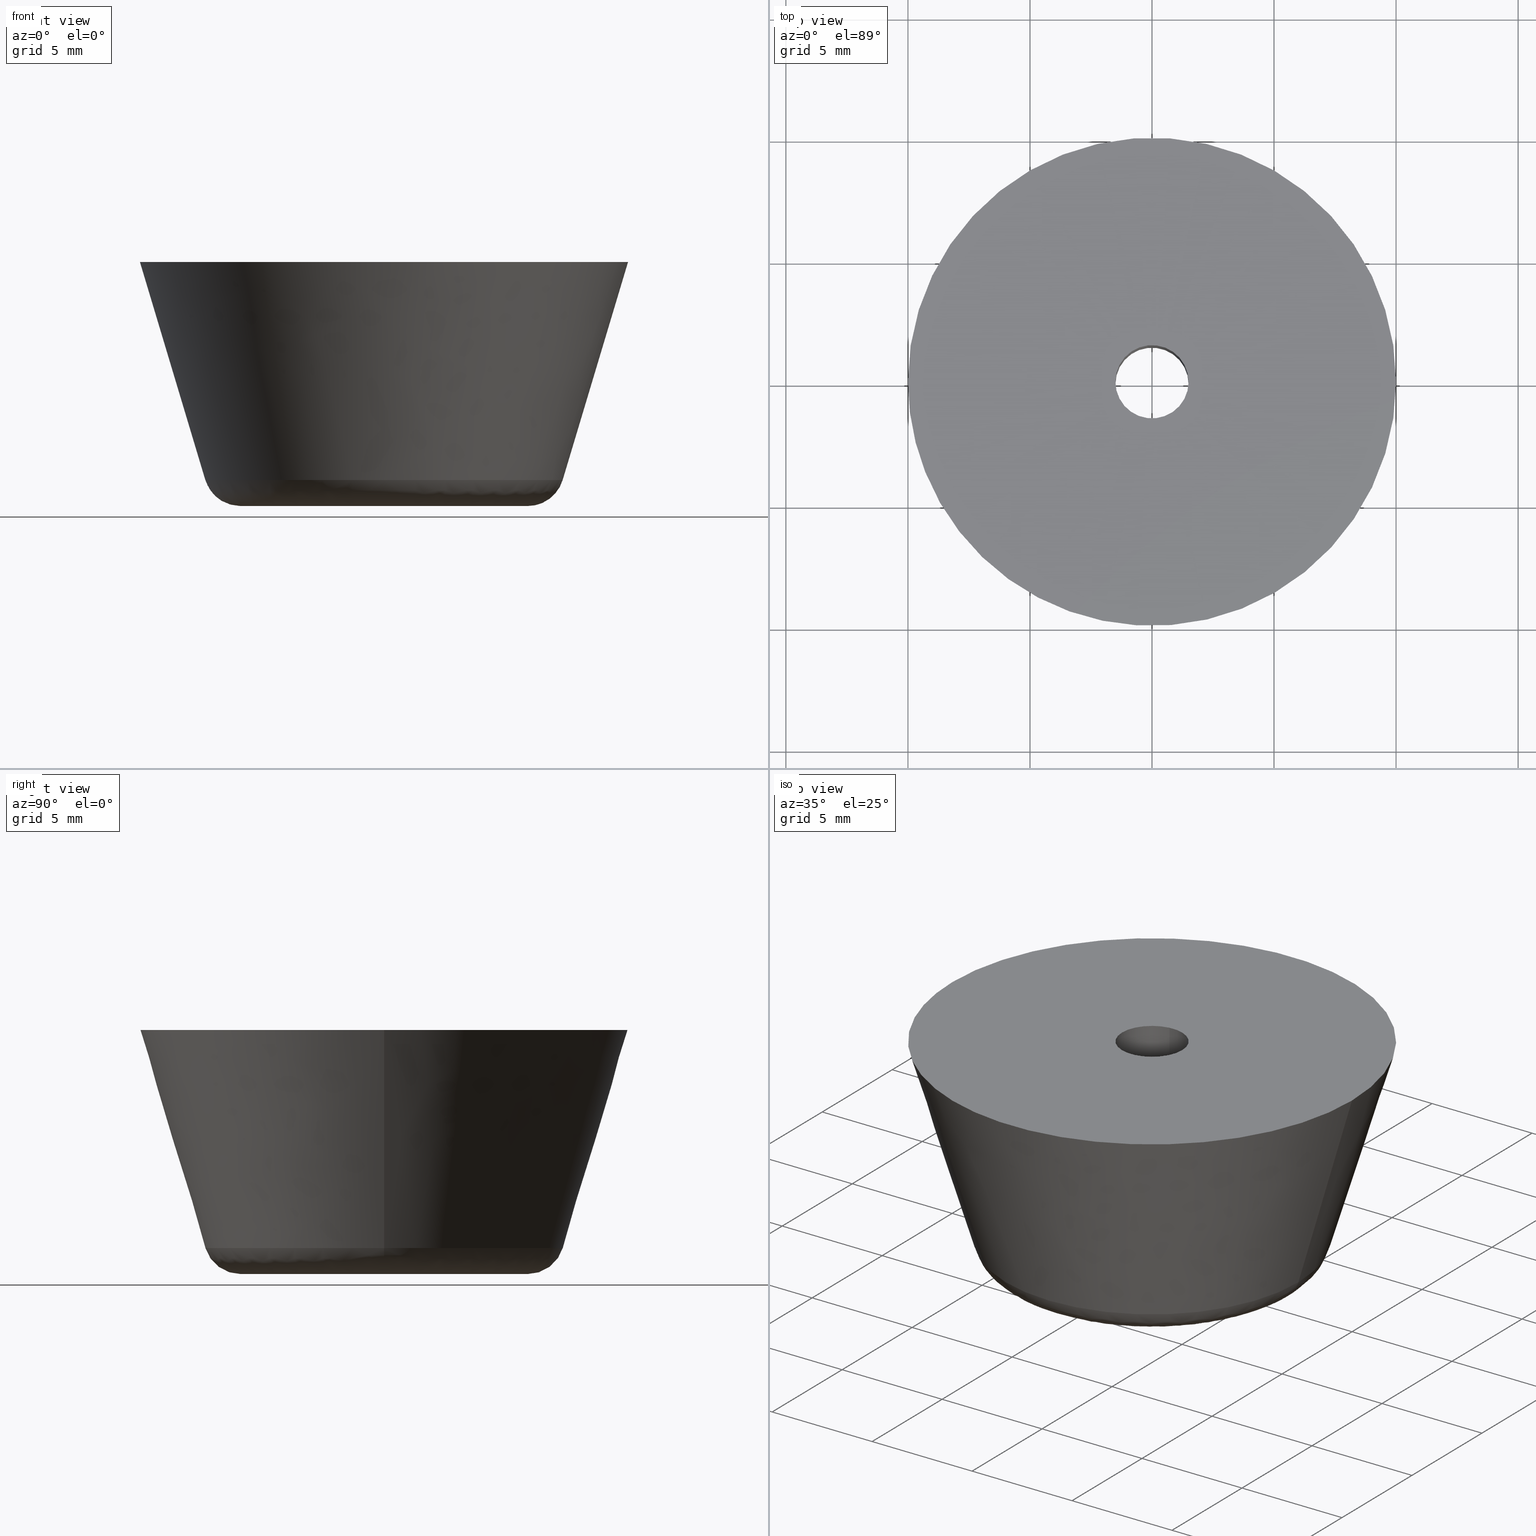
[diagram: canonical four-view strip — front | top / right | iso, engineering-drawing reading convention]
A machine part, canonical four-view strip (front | top / right | iso — engineering-drawing reading convention). The complete STEP part file that produces these views, byte-faithful:
ISO-10303-21;
HEADER;

FILE_DESCRIPTION( (''), '2;1');
FILE_NAME ('PC50.8404.TM_SK_2010_13981.stp','2019-12-20T12:49:18',(''),(''),'spGate 15.6.1','','');

FILE_SCHEMA (('AUTOMOTIVE_DESIGN'));
ENDSEC;

DATA;
#10=(GEOMETRIC_REPRESENTATION_CONTEXT(3) GLOBAL_UNCERTAINTY_ASSIGNED_CONTEXT((#12)) GLOBAL_UNIT_ASSIGNED_CONTEXT((#13,#14,#15)) REPRESENTATION_CONTEXT('ID1','3D'));
#12=UNCERTAINTY_MEASURE_WITH_UNIT(LENGTH_MEASURE(0.01),#16,'DISTANCE_ACCURACY_VALUE','Maximum model space distance between geometric entities at asserted connectivities');
#13=(NAMED_UNIT(*) SI_UNIT($,.STERADIAN.) SOLID_ANGLE_UNIT());
#14=(CONVERSION_BASED_UNIT('DEGREE',#35) NAMED_UNIT(#36) PLANE_ANGLE_UNIT());
#15=(LENGTH_UNIT() NAMED_UNIT(*) SI_UNIT(.MILLI.,.METRE.));
#16=(LENGTH_UNIT() NAMED_UNIT(*) SI_UNIT(.MILLI.,.METRE.));
#17=AXIS2_PLACEMENT_3D('',#38,#39,#40);
#18=AXIS2_PLACEMENT_3D('',#41,#42,#43);
#19=PRODUCT_DEFINITION('','',#48,#49);
#20=AXIS2_PLACEMENT_3D('',#50,#51,#52);
#21=AXIS2_PLACEMENT_3D('',#53,#54,#55);
#22=SHAPE_REPRESENTATION('Assembly',(#18,#20,#21),#10);
#23=AXIS2_PLACEMENT_3D('',#58,#59,#60);
#24=PRODUCT_DEFINITION('','',#65,#66);
#25=SHAPE_REPRESENTATION('washer',(#23),#10);
#26=ITEM_DEFINED_TRANSFORMATION('','',#20,#23);
#27=(REPRESENTATION_RELATIONSHIP('','',#22,#25) REPRESENTATION_RELATIONSHIP_WITH_TRANSFORMATION(#26) SHAPE_REPRESENTATION_RELATIONSHIP());
#29=AXIS2_PLACEMENT_3D('',#73,#74,#75);
#30=PRODUCT_DEFINITION('','',#80,#81);
#31=SHAPE_REPRESENTATION('rubber foot',(#29),#10);
#32=ITEM_DEFINED_TRANSFORMATION('','',#21,#29);
#33=(REPRESENTATION_RELATIONSHIP('','',#22,#31) REPRESENTATION_RELATIONSHIP_WITH_TRANSFORMATION(#32) SHAPE_REPRESENTATION_RELATIONSHIP());
#35=PLANE_ANGLE_MEASURE_WITH_UNIT(PLANE_ANGLE_MEASURE(0.01745329252),#37);
#36=DIMENSIONAL_EXPONENTS(0.0,0.0,0.0,0.0,0.0,0.0,0.0);
#37=(NAMED_UNIT(*) PLANE_ANGLE_UNIT() SI_UNIT($,.RADIAN.));
#38=CARTESIAN_POINT('',(0.00000000000E+000,0.00000000000E+000,0.00000000000E+000));
#39=DIRECTION('',(0.00000000000E+000,0.00000000000E+000,1.00000000000E+000));
#40=DIRECTION('',(1.00000000000E+000,0.00000000000E+000,0.00000000000E+000));
#41=CARTESIAN_POINT('',(0.00000000000E+000,0.00000000000E+000,0.00000000000E+000));
#42=DIRECTION('',(0.00000000000E+000,0.00000000000E+000,1.00000000000E+000));
#43=DIRECTION('',(1.00000000000E+000,0.00000000000E+000,0.00000000000E+000));
#44=APPLICATION_CONTEXT('configuration controlled 3d designs of mechanical parts and assemblies');
#45=APPLICATION_PROTOCOL_DEFINITION('International Standard','automotive_design',1999,#44);
#46=PRODUCT_CONTEXT('',#44,'');
#47=PRODUCT('Assembly','Assembly','',(#46));
#48=PRODUCT_DEFINITION_FORMATION_WITH_SPECIFIED_SOURCE('','',#47,.NOT_KNOWN.);
#49=PRODUCT_DEFINITION_CONTEXT('design',#44,'');
#50=CARTESIAN_POINT('',(0.00000000000E+000,0.00000000000E+000,0.00000000000E+000));
#51=DIRECTION('',(0.00000000000E+000,0.00000000000E+000,1.00000000000E+000));
#52=DIRECTION('',(1.00000000000E+000,0.00000000000E+000,0.00000000000E+000));
#53=CARTESIAN_POINT('',(0.00000000000E+000,0.00000000000E+000,0.00000000000E+000));
#54=DIRECTION('',(0.00000000000E+000,0.00000000000E+000,1.00000000000E+000));
#55=DIRECTION('',(1.00000000000E+000,0.00000000000E+000,0.00000000000E+000));
#56=PRODUCT_DEFINITION_SHAPE('','',#19);
#57=SHAPE_DEFINITION_REPRESENTATION(#56,#22);
#58=CARTESIAN_POINT('',(0.00000000000E+000,0.00000000000E+000,0.00000000000E+000));
#59=DIRECTION('',(0.00000000000E+000,0.00000000000E+000,1.00000000000E+000));
#60=DIRECTION('',(1.00000000000E+000,0.00000000000E+000,0.00000000000E+000));
#61=APPLICATION_CONTEXT('configuration controlled 3d designs of mechanical parts and assemblies');
#62=APPLICATION_PROTOCOL_DEFINITION('International Standard','automotive_design',1999,#61);
#63=PRODUCT_CONTEXT('',#61,'');
#64=PRODUCT('washer','washer','',(#63));
#65=PRODUCT_DEFINITION_FORMATION_WITH_SPECIFIED_SOURCE('','',#64,.NOT_KNOWN.);
#66=PRODUCT_DEFINITION_CONTEXT('design',#61,'');
#67=PRODUCT_DEFINITION_SHAPE('','',#24);
#68=SHAPE_DEFINITION_REPRESENTATION(#67,#25);
#69=NEXT_ASSEMBLY_USAGE_OCCURRENCE('','','',#19,#24,'');
#70=PRODUCT_DEFINITION_SHAPE('','',#69);
#71=CONTEXT_DEPENDENT_SHAPE_REPRESENTATION(#27,#70);
#73=CARTESIAN_POINT('',(0.00000000000E+000,0.00000000000E+000,0.00000000000E+000));
#74=DIRECTION('',(0.00000000000E+000,0.00000000000E+000,1.00000000000E+000));
#75=DIRECTION('',(1.00000000000E+000,0.00000000000E+000,0.00000000000E+000));
#76=APPLICATION_CONTEXT('configuration controlled 3d designs of mechanical parts and assemblies');
#77=APPLICATION_PROTOCOL_DEFINITION('International Standard','automotive_design',1999,#76);
#78=PRODUCT_CONTEXT('',#76,'');
#79=PRODUCT('rubber foot','rubber foot','',(#78));
#80=PRODUCT_DEFINITION_FORMATION_WITH_SPECIFIED_SOURCE('','',#79,.NOT_KNOWN.);
#81=PRODUCT_DEFINITION_CONTEXT('design',#76,'');
#82=PRODUCT_DEFINITION_SHAPE('','',#30);
#83=SHAPE_DEFINITION_REPRESENTATION(#82,#31);
#84=NEXT_ASSEMBLY_USAGE_OCCURRENCE('','','',#19,#30,'');
#85=PRODUCT_DEFINITION_SHAPE('','',#84);
#86=CONTEXT_DEPENDENT_SHAPE_REPRESENTATION(#33,#85);
#88=SHAPE_REPRESENTATION_RELATIONSHIP('','',#25,#91);
#89=SHAPE_REPRESENTATION_RELATIONSHIP('','',#31,#93);
#90=MANIFOLD_SOLID_BREP('washer',#94);
#91=ADVANCED_BREP_SHAPE_REPRESENTATION('washer',(#90),#10);
#92=MANIFOLD_SOLID_BREP('rubber foot',#103);
#93=ADVANCED_BREP_SHAPE_REPRESENTATION('rubber foot',(#92),#10);
#94=CLOSED_SHELL('',(#112,#113,#114,#115,#116,#117));
#95=COLOUR_RGB('',0.00000000000E+000,0.00000000000E+000,0.00000000000E+000);
#96=FILL_AREA_STYLE_COLOUR('',#95);
#97=FILL_AREA_STYLE('',(#96));
#98=SURFACE_STYLE_FILL_AREA(#97);
#99=SURFACE_SIDE_STYLE('',(#98));
#100=SURFACE_STYLE_USAGE(.BOTH.,#99);
#101=PRESENTATION_STYLE_ASSIGNMENT((#100));
#102=STYLED_ITEM('',(#101),#90);
#103=CLOSED_SHELL('',(#118,#119,#120,#121,#122,#123,#124,#125,#126,#127,#128,#129,#130,#131));
#104=COLOUR_RGB('',0.00000000000E+000,0.00000000000E+000,0.00000000000E+000);
#105=FILL_AREA_STYLE_COLOUR('',#104);
#106=FILL_AREA_STYLE('',(#105));
#107=SURFACE_STYLE_FILL_AREA(#106);
#108=SURFACE_SIDE_STYLE('',(#107));
#109=SURFACE_STYLE_USAGE(.BOTH.,#108);
#110=PRESENTATION_STYLE_ASSIGNMENT((#109));
#111=STYLED_ITEM('',(#110),#92);
#112=ADVANCED_FACE('',(#133,#134),#132,.F.);
#113=ADVANCED_FACE('',(#144,#145),#143,.F.);
#114=ADVANCED_FACE('',(#155),#154,.F.);
#115=ADVANCED_FACE('',(#165),#164,.F.);
#116=ADVANCED_FACE('',(#175),#174,.T.);
#117=ADVANCED_FACE('',(#185),#184,.T.);
#118=ADVANCED_FACE('',(#195,#196),#194,.F.);
#119=ADVANCED_FACE('',(#206,#207),#205,.F.);
#120=ADVANCED_FACE('',(#217,#218),#216,.F.);
#121=ADVANCED_FACE('',(#228,#229),#227,.F.);
#122=ADVANCED_FACE('',(#239),#238,.T.);
#123=ADVANCED_FACE('',(#249),#248,.T.);
#124=ADVANCED_FACE('',(#259),#258,.T.);
#125=ADVANCED_FACE('',(#269),#268,.T.);
#126=ADVANCED_FACE('',(#279),#278,.F.);
#127=ADVANCED_FACE('',(#289),#288,.F.);
#128=ADVANCED_FACE('',(#299),#298,.F.);
#129=ADVANCED_FACE('',(#309),#308,.F.);
#130=ADVANCED_FACE('',(#319),#318,.F.);
#131=ADVANCED_FACE('',(#329),#328,.F.);
#132=PLANE('',#341);
#133=FACE_OUTER_BOUND('',#342,.T.);
#134=FACE_BOUND('',#343,.T.);
#135=COLOUR_RGB('',1.00000000000E+000,1.00000000000E+000,1.00000000000E+000);
#136=FILL_AREA_STYLE_COLOUR('',#135);
#137=FILL_AREA_STYLE('',(#136));
#138=SURFACE_STYLE_FILL_AREA(#137);
#139=SURFACE_SIDE_STYLE('',(#138));
#140=SURFACE_STYLE_USAGE(.BOTH.,#139);
#141=PRESENTATION_STYLE_ASSIGNMENT((#140));
#142=STYLED_ITEM('',(#141),#112);
#143=PLANE('',#347);
#144=FACE_OUTER_BOUND('',#348,.T.);
#145=FACE_BOUND('',#349,.T.);
#146=COLOUR_RGB('',1.00000000000E+000,1.00000000000E+000,1.00000000000E+000);
#147=FILL_AREA_STYLE_COLOUR('',#146);
#148=FILL_AREA_STYLE('',(#147));
#149=SURFACE_STYLE_FILL_AREA(#148);
#150=SURFACE_SIDE_STYLE('',(#149));
#151=SURFACE_STYLE_USAGE(.BOTH.,#150);
#152=PRESENTATION_STYLE_ASSIGNMENT((#151));
#153=STYLED_ITEM('',(#152),#113);
#154=CYLINDRICAL_SURFACE('',#353,1.50000000000E+000);
#155=FACE_OUTER_BOUND('',#354,.T.);
#156=COLOUR_RGB('',1.00000000000E+000,1.00000000000E+000,1.00000000000E+000);
#157=FILL_AREA_STYLE_COLOUR('',#156);
#158=FILL_AREA_STYLE('',(#157));
#159=SURFACE_STYLE_FILL_AREA(#158);
#160=SURFACE_SIDE_STYLE('',(#159));
#161=SURFACE_STYLE_USAGE(.BOTH.,#160);
#162=PRESENTATION_STYLE_ASSIGNMENT((#161));
#163=STYLED_ITEM('',(#162),#114);
#164=CYLINDRICAL_SURFACE('',#358,1.50000000000E+000);
#165=FACE_OUTER_BOUND('',#359,.T.);
#166=COLOUR_RGB('',1.00000000000E+000,1.00000000000E+000,1.00000000000E+000);
#167=FILL_AREA_STYLE_COLOUR('',#166);
#168=FILL_AREA_STYLE('',(#167));
#169=SURFACE_STYLE_FILL_AREA(#168);
#170=SURFACE_SIDE_STYLE('',(#169));
#171=SURFACE_STYLE_USAGE(.BOTH.,#170);
#172=PRESENTATION_STYLE_ASSIGNMENT((#171));
#173=STYLED_ITEM('',(#172),#115);
#174=CYLINDRICAL_SURFACE('',#363,4.50000000000E+000);
#175=FACE_OUTER_BOUND('',#364,.T.);
#176=COLOUR_RGB('',1.00000000000E+000,1.00000000000E+000,1.00000000000E+000);
#177=FILL_AREA_STYLE_COLOUR('',#176);
#178=FILL_AREA_STYLE('',(#177));
#179=SURFACE_STYLE_FILL_AREA(#178);
#180=SURFACE_SIDE_STYLE('',(#179));
#181=SURFACE_STYLE_USAGE(.BOTH.,#180);
#182=PRESENTATION_STYLE_ASSIGNMENT((#181));
#183=STYLED_ITEM('',(#182),#116);
#184=CYLINDRICAL_SURFACE('',#368,4.50000000000E+000);
#185=FACE_OUTER_BOUND('',#369,.T.);
#186=COLOUR_RGB('',1.00000000000E+000,1.00000000000E+000,1.00000000000E+000);
#187=FILL_AREA_STYLE_COLOUR('',#186);
#188=FILL_AREA_STYLE('',(#187));
#189=SURFACE_STYLE_FILL_AREA(#188);
#190=SURFACE_SIDE_STYLE('',(#189));
#191=SURFACE_STYLE_USAGE(.BOTH.,#190);
#192=PRESENTATION_STYLE_ASSIGNMENT((#191));
#193=STYLED_ITEM('',(#192),#117);
#194=PLANE('',#373);
#195=FACE_OUTER_BOUND('',#374,.T.);
#196=FACE_BOUND('',#375,.T.);
#197=COLOUR_RGB('',1.00000000000E+000,1.00000000000E+000,1.00000000000E+000);
#198=FILL_AREA_STYLE_COLOUR('',#197);
#199=FILL_AREA_STYLE('',(#198));
#200=SURFACE_STYLE_FILL_AREA(#199);
#201=SURFACE_SIDE_STYLE('',(#200));
#202=SURFACE_STYLE_USAGE(.BOTH.,#201);
#203=PRESENTATION_STYLE_ASSIGNMENT((#202));
#204=STYLED_ITEM('',(#203),#118);
#205=PLANE('',#379);
#206=FACE_OUTER_BOUND('',#380,.T.);
#207=FACE_BOUND('',#381,.T.);
#208=COLOUR_RGB('',1.00000000000E+000,1.00000000000E+000,1.00000000000E+000);
#209=FILL_AREA_STYLE_COLOUR('',#208);
#210=FILL_AREA_STYLE('',(#209));
#211=SURFACE_STYLE_FILL_AREA(#210);
#212=SURFACE_SIDE_STYLE('',(#211));
#213=SURFACE_STYLE_USAGE(.BOTH.,#212);
#214=PRESENTATION_STYLE_ASSIGNMENT((#213));
#215=STYLED_ITEM('',(#214),#119);
#216=PLANE('',#385);
#217=FACE_OUTER_BOUND('',#386,.T.);
#218=FACE_BOUND('',#387,.T.);
#219=COLOUR_RGB('',1.00000000000E+000,1.00000000000E+000,1.00000000000E+000);
#220=FILL_AREA_STYLE_COLOUR('',#219);
#221=FILL_AREA_STYLE('',(#220));
#222=SURFACE_STYLE_FILL_AREA(#221);
#223=SURFACE_SIDE_STYLE('',(#222));
#224=SURFACE_STYLE_USAGE(.BOTH.,#223);
#225=PRESENTATION_STYLE_ASSIGNMENT((#224));
#226=STYLED_ITEM('',(#225),#120);
#227=PLANE('',#391);
#228=FACE_OUTER_BOUND('',#392,.T.);
#229=FACE_BOUND('',#393,.T.);
#230=COLOUR_RGB('',1.00000000000E+000,1.00000000000E+000,1.00000000000E+000);
#231=FILL_AREA_STYLE_COLOUR('',#230);
#232=FILL_AREA_STYLE('',(#231));
#233=SURFACE_STYLE_FILL_AREA(#232);
#234=SURFACE_SIDE_STYLE('',(#233));
#235=SURFACE_STYLE_USAGE(.BOTH.,#234);
#236=PRESENTATION_STYLE_ASSIGNMENT((#235));
#237=STYLED_ITEM('',(#236),#121);
#238=( BOUNDED_SURFACE() B_SPLINE_SURFACE( 2,2,((#394,#395,#396,#397,#398),(#399,#400,#401,#402,#403),(#404,#405,#406,#407,#408),(#409,#410,#411,#412,#413),(#414,#415,#416,#417,#418)), .UNSPECIFIED.,.F.,.F.,.F.) B_SPLINE_SURFACE_WITH_KNOTS((3,2,3),(3,2,3),(0.00000000000E+000,5.00000000000E-001,1.00000000000E+000),(0.00000000000E+000,5.00000000000E-001,1.00000000000E+000), .UNSPECIFIED. ) GEOMETRIC_REPRESENTATION_ITEM() RATIONAL_B_SPLINE_SURFACE(((1.00000000000E+000,8.02292928290E-001,1.00000000000E+000,8.02292928290E-001,1.00000000000E+000),(7.07106781187E-001,5.67306770092E-001,7.07106781187E-001,5.67306770092E-001,7.07106781187E-001),(1.00000000000E+000,8.02292928290E-001,1.00000000000E+000,8.02292928290E-001,1.00000000000E+000),(7.07106781187E-001,5.67306770092E-001,7.07106781187E-001,5.67306770092E-001,7.07106781187E-001),(1.00000000000E+000,8.02292928290E-001,1.00000000000E+000,8.02292928290E-001,1.00000000000E+000))) REPRESENTATION_ITEM('') SURFACE() );
#239=FACE_OUTER_BOUND('',#419,.T.);
#240=COLOUR_RGB('',1.00000000000E+000,1.00000000000E+000,1.00000000000E+000);
#241=FILL_AREA_STYLE_COLOUR('',#240);
#242=FILL_AREA_STYLE('',(#241));
#243=SURFACE_STYLE_FILL_AREA(#242);
#244=SURFACE_SIDE_STYLE('',(#243));
#245=SURFACE_STYLE_USAGE(.BOTH.,#244);
#246=PRESENTATION_STYLE_ASSIGNMENT((#245));
#247=STYLED_ITEM('',(#246),#122);
#248=( BOUNDED_SURFACE() B_SPLINE_SURFACE( 2,2,((#420,#421,#422,#423,#424),(#425,#426,#427,#428,#429),(#430,#431,#432,#433,#434),(#435,#436,#437,#438,#439),(#440,#441,#442,#443,#444)), .UNSPECIFIED.,.F.,.F.,.F.) B_SPLINE_SURFACE_WITH_KNOTS((3,2,3),(3,2,3),(0.00000000000E+000,5.00000000000E-001,1.00000000000E+000),(0.00000000000E+000,5.00000000000E-001,1.00000000000E+000), .UNSPECIFIED. ) GEOMETRIC_REPRESENTATION_ITEM() RATIONAL_B_SPLINE_SURFACE(((1.00000000000E+000,8.02292928290E-001,1.00000000000E+000,8.02292928290E-001,1.00000000000E+000),(7.07106781187E-001,5.67306770092E-001,7.07106781187E-001,5.67306770092E-001,7.07106781187E-001),(1.00000000000E+000,8.02292928290E-001,1.00000000000E+000,8.02292928290E-001,1.00000000000E+000),(7.07106781187E-001,5.67306770092E-001,7.07106781187E-001,5.67306770092E-001,7.07106781187E-001),(1.00000000000E+000,8.02292928290E-001,1.00000000000E+000,8.02292928290E-001,1.00000000000E+000))) REPRESENTATION_ITEM('') SURFACE() );
#249=FACE_OUTER_BOUND('',#445,.T.);
#250=COLOUR_RGB('',1.00000000000E+000,1.00000000000E+000,1.00000000000E+000);
#251=FILL_AREA_STYLE_COLOUR('',#250);
#252=FILL_AREA_STYLE('',(#251));
#253=SURFACE_STYLE_FILL_AREA(#252);
#254=SURFACE_SIDE_STYLE('',(#253));
#255=SURFACE_STYLE_USAGE(.BOTH.,#254);
#256=PRESENTATION_STYLE_ASSIGNMENT((#255));
#257=STYLED_ITEM('',(#256),#123);
#258=( BOUNDED_SURFACE() B_SPLINE_SURFACE( 2,1,((#446,#447),(#448,#449),(#450,#451),(#452,#453),(#454,#455)), .UNSPECIFIED.,.F.,.F.,.F.) B_SPLINE_SURFACE_WITH_KNOTS((3,2,3),(2,2),(0.00000000000E+000,5.00000000000E-001,1.00000000000E+000),(0.00000000000E+000,1.00000000000E+000), .UNSPECIFIED. ) GEOMETRIC_REPRESENTATION_ITEM() RATIONAL_B_SPLINE_SURFACE(((1.00000000000E+000,1.00000000000E+000),(7.07106781187E-001,7.07106781187E-001),(1.00000000000E+000,1.00000000000E+000),(7.07106781187E-001,7.07106781187E-001),(1.00000000000E+000,1.00000000000E+000))) REPRESENTATION_ITEM('') SURFACE() );
#259=FACE_OUTER_BOUND('',#456,.T.);
#260=COLOUR_RGB('',1.00000000000E+000,1.00000000000E+000,1.00000000000E+000);
#261=FILL_AREA_STYLE_COLOUR('',#260);
#262=FILL_AREA_STYLE('',(#261));
#263=SURFACE_STYLE_FILL_AREA(#262);
#264=SURFACE_SIDE_STYLE('',(#263));
#265=SURFACE_STYLE_USAGE(.BOTH.,#264);
#266=PRESENTATION_STYLE_ASSIGNMENT((#265));
#267=STYLED_ITEM('',(#266),#124);
#268=( BOUNDED_SURFACE() B_SPLINE_SURFACE( 2,1,((#457,#458),(#459,#460),(#461,#462),(#463,#464),(#465,#466)), .UNSPECIFIED.,.F.,.F.,.F.) B_SPLINE_SURFACE_WITH_KNOTS((3,2,3),(2,2),(0.00000000000E+000,5.00000000000E-001,1.00000000000E+000),(0.00000000000E+000,1.00000000000E+000), .UNSPECIFIED. ) GEOMETRIC_REPRESENTATION_ITEM() RATIONAL_B_SPLINE_SURFACE(((1.00000000000E+000,1.00000000000E+000),(7.07106781187E-001,7.07106781187E-001),(1.00000000000E+000,1.00000000000E+000),(7.07106781187E-001,7.07106781187E-001),(1.00000000000E+000,1.00000000000E+000))) REPRESENTATION_ITEM('') SURFACE() );
#269=FACE_OUTER_BOUND('',#467,.T.);
#270=COLOUR_RGB('',1.00000000000E+000,1.00000000000E+000,1.00000000000E+000);
#271=FILL_AREA_STYLE_COLOUR('',#270);
#272=FILL_AREA_STYLE('',(#271));
#273=SURFACE_STYLE_FILL_AREA(#272);
#274=SURFACE_SIDE_STYLE('',(#273));
#275=SURFACE_STYLE_USAGE(.BOTH.,#274);
#276=PRESENTATION_STYLE_ASSIGNMENT((#275));
#277=STYLED_ITEM('',(#276),#125);
#278=CYLINDRICAL_SURFACE('',#471,1.50000000000E+000);
#279=FACE_OUTER_BOUND('',#472,.T.);
#280=COLOUR_RGB('',1.00000000000E+000,1.00000000000E+000,1.00000000000E+000);
#281=FILL_AREA_STYLE_COLOUR('',#280);
#282=FILL_AREA_STYLE('',(#281));
#283=SURFACE_STYLE_FILL_AREA(#282);
#284=SURFACE_SIDE_STYLE('',(#283));
#285=SURFACE_STYLE_USAGE(.BOTH.,#284);
#286=PRESENTATION_STYLE_ASSIGNMENT((#285));
#287=STYLED_ITEM('',(#286),#126);
#288=CYLINDRICAL_SURFACE('',#476,1.50000000000E+000);
#289=FACE_OUTER_BOUND('',#477,.T.);
#290=COLOUR_RGB('',1.00000000000E+000,1.00000000000E+000,1.00000000000E+000);
#291=FILL_AREA_STYLE_COLOUR('',#290);
#292=FILL_AREA_STYLE('',(#291));
#293=SURFACE_STYLE_FILL_AREA(#292);
#294=SURFACE_SIDE_STYLE('',(#293));
#295=SURFACE_STYLE_USAGE(.BOTH.,#294);
#296=PRESENTATION_STYLE_ASSIGNMENT((#295));
#297=STYLED_ITEM('',(#296),#127);
#298=CYLINDRICAL_SURFACE('',#481,4.50000000000E+000);
#299=FACE_OUTER_BOUND('',#482,.T.);
#300=COLOUR_RGB('',1.00000000000E+000,1.00000000000E+000,1.00000000000E+000);
#301=FILL_AREA_STYLE_COLOUR('',#300);
#302=FILL_AREA_STYLE('',(#301));
#303=SURFACE_STYLE_FILL_AREA(#302);
#304=SURFACE_SIDE_STYLE('',(#303));
#305=SURFACE_STYLE_USAGE(.BOTH.,#304);
#306=PRESENTATION_STYLE_ASSIGNMENT((#305));
#307=STYLED_ITEM('',(#306),#128);
#308=CYLINDRICAL_SURFACE('',#486,4.50000000000E+000);
#309=FACE_OUTER_BOUND('',#487,.T.);
#310=COLOUR_RGB('',1.00000000000E+000,1.00000000000E+000,1.00000000000E+000);
#311=FILL_AREA_STYLE_COLOUR('',#310);
#312=FILL_AREA_STYLE('',(#311));
#313=SURFACE_STYLE_FILL_AREA(#312);
#314=SURFACE_SIDE_STYLE('',(#313));
#315=SURFACE_STYLE_USAGE(.BOTH.,#314);
#316=PRESENTATION_STYLE_ASSIGNMENT((#315));
#317=STYLED_ITEM('',(#316),#129);
#318=CYLINDRICAL_SURFACE('',#491,4.00000000000E+000);
#319=FACE_OUTER_BOUND('',#492,.T.);
#320=COLOUR_RGB('',1.00000000000E+000,1.00000000000E+000,1.00000000000E+000);
#321=FILL_AREA_STYLE_COLOUR('',#320);
#322=FILL_AREA_STYLE('',(#321));
#323=SURFACE_STYLE_FILL_AREA(#322);
#324=SURFACE_SIDE_STYLE('',(#323));
#325=SURFACE_STYLE_USAGE(.BOTH.,#324);
#326=PRESENTATION_STYLE_ASSIGNMENT((#325));
#327=STYLED_ITEM('',(#326),#130);
#328=CYLINDRICAL_SURFACE('',#496,4.00000000000E+000);
#329=FACE_OUTER_BOUND('',#497,.T.);
#330=COLOUR_RGB('',1.00000000000E+000,1.00000000000E+000,1.00000000000E+000);
#331=FILL_AREA_STYLE_COLOUR('',#330);
#332=FILL_AREA_STYLE('',(#331));
#333=SURFACE_STYLE_FILL_AREA(#332);
#334=SURFACE_SIDE_STYLE('',(#333));
#335=SURFACE_STYLE_USAGE(.BOTH.,#334);
#336=PRESENTATION_STYLE_ASSIGNMENT((#335));
#337=STYLED_ITEM('',(#336),#131);
#338=CARTESIAN_POINT('',(-8.75654082124E+000,-6.82108599998E+000,4.00000000000E+000));
#339=DIRECTION('',(0.00000000000E+000,0.00000000000E+000,1.00000000000E+000));
#340=DIRECTION('',(1.00000000000E+000,0.00000000000E+000,0.00000000000E+000));
#341=AXIS2_PLACEMENT_3D('',#338,#339,#340);
#342=EDGE_LOOP('',(#498,#499));
#343=EDGE_LOOP('',(#500,#501));
#344=CARTESIAN_POINT('',(8.75557756133E+000,-1.03695698860E+001,4.50000000000E+000));
#345=DIRECTION('',(0.00000000000E+000,0.00000000000E+000,-1.00000000000E+000));
#346=DIRECTION('',(-1.00000000000E+000,0.00000000000E+000,0.00000000000E+000));
#347=AXIS2_PLACEMENT_3D('',#344,#345,#346);
#348=EDGE_LOOP('',(#502,#503));
#349=EDGE_LOOP('',(#504,#505));
#350=CARTESIAN_POINT('',(-3.88552547630E-016,3.35238344100E-016,4.25000000000E+000));
#351=DIRECTION('',(-1.63270326226E-016,-1.94071531910E-017,-1.00000000000E+000));
#352=DIRECTION('',(-1.18034234657E-001,9.93009526364E-001,1.61223447505E-029));
#353=AXIS2_PLACEMENT_3D('',#350,#351,#352);
#354=EDGE_LOOP('',(#506,#507,#508,#509));
#355=CARTESIAN_POINT('',(-3.88552547630E-016,3.35238344100E-016,4.25000000000E+000));
#356=DIRECTION('',(-1.63270326226E-016,-1.94071531910E-017,-1.00000000000E+000));
#357=DIRECTION('',(-1.18034234657E-001,9.93009526364E-001,1.61223447505E-029));
#358=AXIS2_PLACEMENT_3D('',#355,#356,#357);
#359=EDGE_LOOP('',(#510,#511,#512,#513));
#360=CARTESIAN_POINT('',(-9.69946345464E-013,-5.03729002954E-013,4.25000000000E+000));
#361=DIRECTION('',(-5.46606681923E-015,-8.48484392522E-016,-1.00000000000E+000));
#362=DIRECTION('',(-1.18033711746E-001,9.93009588519E-001,-1.97372982158E-016));
#363=AXIS2_PLACEMENT_3D('',#360,#361,#362);
#364=EDGE_LOOP('',(#514,#515,#516,#517));
#365=CARTESIAN_POINT('',(-9.69946345464E-013,-5.03729002954E-013,4.25000000000E+000));
#366=DIRECTION('',(-5.46606681923E-015,-8.48484392522E-016,-1.00000000000E+000));
#367=DIRECTION('',(-1.18033711746E-001,9.93009588519E-001,-1.97372982158E-016));
#368=AXIS2_PLACEMENT_3D('',#365,#366,#367);
#369=EDGE_LOOP('',(#518,#519,#520,#521));
#370=CARTESIAN_POINT('',(-7.64914023077E+000,-1.22295687821E+001,4.97379900000E-014));
#371=DIRECTION('',(0.00000000000E+000,0.00000000000E+000,1.00000000000E+000));
#372=DIRECTION('',(1.00000000000E+000,0.00000000000E+000,0.00000000000E+000));
#373=AXIS2_PLACEMENT_3D('',#370,#371,#372);
#374=EDGE_LOOP('',(#522,#523));
#375=EDGE_LOOP('',(#524,#525));
#376=CARTESIAN_POINT('',(1.20000000000E+001,-1.26037039870E+001,1.00000000000E+001));
#377=DIRECTION('',(0.00000000000E+000,0.00000000000E+000,-1.00000000000E+000));
#378=DIRECTION('',(-1.00000000000E+000,0.00000000000E+000,0.00000000000E+000));
#379=AXIS2_PLACEMENT_3D('',#376,#377,#378);
#380=EDGE_LOOP('',(#526,#527,#528,#529));
#381=EDGE_LOOP('',(#530,#531));
#382=CARTESIAN_POINT('',(8.75557755336E+000,-1.03695698853E+001,4.00000000000E+000));
#383=DIRECTION('',(0.00000000000E+000,0.00000000000E+000,-1.00000000000E+000));
#384=DIRECTION('',(-1.00000000000E+000,0.00000000000E+000,0.00000000000E+000));
#385=AXIS2_PLACEMENT_3D('',#382,#383,#384);
#386=EDGE_LOOP('',(#532,#533));
#387=EDGE_LOOP('',(#534,#535));
#388=CARTESIAN_POINT('',(-8.75654081261E+000,-6.82108601209E+000,4.50000000000E+000));
#389=DIRECTION('',(0.00000000000E+000,0.00000000000E+000,1.00000000000E+000));
#390=DIRECTION('',(1.00000000000E+000,0.00000000000E+000,0.00000000000E+000));
#391=AXIS2_PLACEMENT_3D('',#388,#389,#390);
#392=EDGE_LOOP('',(#536,#537));
#393=EDGE_LOOP('',(#538,#539));
#394=CARTESIAN_POINT('',(4.44721459583E+000,1.38854085132E-014,1.06897817165E+000));
#395=CARTESIAN_POINT('',(4.76790804733E+000,5.87304449885E-015,5.00940143859E-014));
#396=CARTESIAN_POINT('',(5.88395402367E+000,7.90313057082E-015,4.97379915032E-014));
#397=CARTESIAN_POINT('',(7.00000000000E+000,9.93321664279E-015,4.95404893650E-014));
#398=CARTESIAN_POINT('',(7.32069345150E+000,1.91122625378E-014,1.06897817165E+000));
#399=CARTESIAN_POINT('',(4.44721459583E+000,4.44721459583E+000,1.06897817165E+000));
#400=CARTESIAN_POINT('',(4.76790804733E+000,4.76790804733E+000,1.17366873983E-014));
#401=CARTESIAN_POINT('',(5.88395402367E+000,5.88395402367E+000,2.32119925096E-015));
#402=CARTESIAN_POINT('',(7.00000000000E+000,7.00000000000E+000,-6.82129722890E-015));
#403=CARTESIAN_POINT('',(7.32069345150E+000,7.32069345150E+000,1.06897817165E+000));
#404=CARTESIAN_POINT('',(-7.81716378157E-015,4.44721459583E+000,1.06897817165E+000));
#405=CARTESIAN_POINT('',(-8.38086791142E-015,4.76790804733E+000,1.16240254376E-014));
#406=CARTESIAN_POINT('',(-1.03426158768E-014,5.88395402367E+000,2.44249065418E-015));
#407=CARTESIAN_POINT('',(-1.23043638421E-014,7.00000000000E+000,-6.64230025006E-015));
#408=CARTESIAN_POINT('',(-1.28680679720E-014,7.32069345150E+000,1.06897817165E+000));
#409=CARTESIAN_POINT('',(-4.44721459583E+000,4.44721459583E+000,1.06897817165E+000));
#410=CARTESIAN_POINT('',(-4.76790804733E+000,4.76790804733E+000,1.17366873983E-014));
#411=CARTESIAN_POINT('',(-5.88395402367E+000,5.88395402367E+000,2.32119925096E-015));
#412=CARTESIAN_POINT('',(-7.00000000000E+000,7.00000000000E+000,-6.82129722890E-015));
#413=CARTESIAN_POINT('',(-7.32069345150E+000,7.32069345150E+000,1.06897817165E+000));
#414=CARTESIAN_POINT('',(-4.44721459583E+000,-1.74891904990E-015,1.06897817165E+000));
#415=CARTESIAN_POINT('',(-4.76790804733E+000,-1.08886913240E-014,5.00940143859E-014));
#416=CARTESIAN_POINT('',(-5.88395402367E+000,-1.27821011827E-014,4.97379915032E-014));
#417=CARTESIAN_POINT('',(-7.00000000000E+000,-1.46755110414E-014,4.95404893650E-014));
#418=CARTESIAN_POINT('',(-7.32069345150E+000,-6.62387340614E-015,1.06897817165E+000));
#419=EDGE_LOOP('',(#540,#541,#542,#543));
#420=CARTESIAN_POINT('',(-4.44721459583E+000,-1.74891904990E-015,1.06897817165E+000));
#421=CARTESIAN_POINT('',(-4.76790804733E+000,-1.08886913240E-014,5.00940143859E-014));
#422=CARTESIAN_POINT('',(-5.88395402367E+000,-1.27821011827E-014,4.97379915032E-014));
#423=CARTESIAN_POINT('',(-7.00000000000E+000,-1.46755110414E-014,4.95404893650E-014));
#424=CARTESIAN_POINT('',(-7.32069345150E+000,-6.62387340614E-015,1.06897817165E+000));
#425=CARTESIAN_POINT('',(-4.44721459583E+000,-4.44721459583E+000,1.06897817165E+000));
#426=CARTESIAN_POINT('',(-4.76790804733E+000,-4.76790804733E+000,8.84513413734E-014));
#427=CARTESIAN_POINT('',(-5.88395402367E+000,-5.88395402367E+000,9.71547837555E-014));
#428=CARTESIAN_POINT('',(-7.00000000000E+000,-7.00000000000E+000,1.05902275959E-013));
#429=CARTESIAN_POINT('',(-7.32069345150E+000,-7.32069345150E+000,1.06897817165E+000));
#430=CARTESIAN_POINT('',(7.27253706958E-015,-4.44721459583E+000,1.06897817165E+000));
#431=CARTESIAN_POINT('',(7.79696757855E-015,-4.76790804733E+000,8.85640033341E-014));
#432=CARTESIAN_POINT('',(9.62203933062E-015,-5.88395402367E+000,9.70334923522E-014));
#433=CARTESIAN_POINT('',(1.14471110827E-014,-7.00000000000E+000,1.05723278980E-013));
#434=CARTESIAN_POINT('',(1.19715415917E-014,-7.32069345150E+000,1.06897817165E+000));
#435=CARTESIAN_POINT('',(4.44721459583E+000,-4.44721459583E+000,1.06897817165E+000));
#436=CARTESIAN_POINT('',(4.76790804733E+000,-4.76790804733E+000,8.84513413734E-014));
#437=CARTESIAN_POINT('',(5.88395402367E+000,-5.88395402367E+000,9.71547837555E-014));
#438=CARTESIAN_POINT('',(7.00000000000E+000,-7.00000000000E+000,1.05902275959E-013));
#439=CARTESIAN_POINT('',(7.32069345150E+000,-7.32069345150E+000,1.06897817165E+000));
#440=CARTESIAN_POINT('',(4.44721459583E+000,1.27961550893E-014,1.06897817165E+000));
#441=CARTESIAN_POINT('',(4.76790804733E+000,4.70524383310E-015,5.00940143859E-014));
#442=CARTESIAN_POINT('',(5.88395402367E+000,6.46197747854E-015,4.97379915032E-014));
#443=CARTESIAN_POINT('',(7.00000000000E+000,8.21871112398E-015,4.95404893650E-014));
#444=CARTESIAN_POINT('',(7.32069345150E+000,1.73192097772E-014,1.06897817165E+000));
#445=EDGE_LOOP('',(#544,#545,#546,#547));
#446=CARTESIAN_POINT('',(-7.32069345150E+000,-4.06974120677E-015,1.06897817165E+000));
#447=CARTESIAN_POINT('',(-1.00002089999E+001,-4.98719958961E-015,1.00006966664E+001));
#448=CARTESIAN_POINT('',(-7.32069345150E+000,-7.32069345150E+000,1.06897817165E+000));
#449=CARTESIAN_POINT('',(-1.00002089999E+001,-1.00002089999E+001,1.00006966664E+001));
#450=CARTESIAN_POINT('',(3.82792336397E-015,-7.32069345150E+000,1.06897817165E+000));
#451=CARTESIAN_POINT('',(5.22901743242E-015,-1.00002089999E+001,1.00006966664E+001));
#452=CARTESIAN_POINT('',(7.32069345150E+000,-7.32069345150E+000,1.06897817165E+000));
#453=CARTESIAN_POINT('',(1.00002089999E+001,-1.00002089999E+001,1.00006966664E+001));
#454=CARTESIAN_POINT('',(7.32069345150E+000,3.58610552116E-015,1.06897817165E+000));
#455=CARTESIAN_POINT('',(1.00002089999E+001,5.47083527523E-015,1.00006966664E+001));
#456=EDGE_LOOP('',(#548,#549,#550,#551,#552,#553));
#457=CARTESIAN_POINT('',(7.32069345150E+000,3.58610552116E-015,1.06897817165E+000));
#458=CARTESIAN_POINT('',(1.00002089999E+001,5.47083527523E-015,1.00006966664E+001));
#459=CARTESIAN_POINT('',(7.32069345150E+000,7.32069345150E+000,1.06897817165E+000));
#460=CARTESIAN_POINT('',(1.00002089999E+001,1.00002089999E+001,1.00006966664E+001));
#461=CARTESIAN_POINT('',(-2.93139698368E-015,7.32069345150E+000,1.06897817165E+000));
#462=CARTESIAN_POINT('',(-4.00434503817E-015,1.00002089999E+001,1.00006966664E+001));
#463=CARTESIAN_POINT('',(-7.32069345150E+000,7.32069345150E+000,1.06897817165E+000));
#464=CARTESIAN_POINT('',(-1.00002089999E+001,1.00002089999E+001,1.00006966664E+001));
#465=CARTESIAN_POINT('',(-7.32069345150E+000,-2.27668844619E-015,1.06897817165E+000));
#466=CARTESIAN_POINT('',(-1.00002089999E+001,-2.53785480110E-015,1.00006966664E+001));
#467=EDGE_LOOP('',(#554,#555,#556,#557));
#468=CARTESIAN_POINT('',(-3.44921326432E-016,3.41449444882E-016,7.25000000000E+000));
#469=DIRECTION('',(-2.54002805846E-014,-3.61549565237E-015,-1.00000000000E+000));
#470=DIRECTION('',(-1.18034234657E-001,9.93009526364E-001,-5.92118946455E-016));
#471=AXIS2_PLACEMENT_3D('',#468,#469,#470);
#472=EDGE_LOOP('',(#558,#559,#560,#561));
#473=CARTESIAN_POINT('',(-3.44921326432E-016,3.41449444882E-016,7.25000000000E+000));
#474=DIRECTION('',(-2.54002805846E-014,-3.61549565237E-015,-1.00000000000E+000));
#475=DIRECTION('',(-1.18034234657E-001,9.93009526364E-001,-5.92118946455E-016));
#476=AXIS2_PLACEMENT_3D('',#473,#474,#475);
#477=EDGE_LOOP('',(#562,#563,#564,#565));
#478=CARTESIAN_POINT('',(-9.74997860226E-013,-5.13849379713E-013,4.25000000000E+000));
#479=DIRECTION('',(-3.61652189055E-015,-4.29876521766E-016,-1.00000000000E+000));
#480=DIRECTION('',(-1.18033713284E-001,9.93009588337E-001,-1.08813501114E-028));
#481=AXIS2_PLACEMENT_3D('',#478,#479,#480);
#482=EDGE_LOOP('',(#566,#567,#568,#569));
#483=CARTESIAN_POINT('',(-9.74997860226E-013,-5.13849379713E-013,4.25000000000E+000));
#484=DIRECTION('',(-3.61652189055E-015,-4.29876521766E-016,-1.00000000000E+000));
#485=DIRECTION('',(-1.18033713284E-001,9.93009588337E-001,-1.08813501114E-028));
#486=AXIS2_PLACEMENT_3D('',#483,#484,#485);
#487=EDGE_LOOP('',(#570,#571,#572,#573));
#488=CARTESIAN_POINT('',(-2.17251144580E-017,2.39968896569E-016,2.00000000000E+000));
#489=DIRECTION('',(-4.82436889898E-015,-4.61645508991E-016,-1.00000000000E+000));
#490=DIRECTION('',(-1.18034234657E-001,9.93009526364E-001,1.11022302463E-016));
#491=AXIS2_PLACEMENT_3D('',#488,#489,#490);
#492=EDGE_LOOP('',(#574,#575,#576,#577));
#493=CARTESIAN_POINT('',(-2.17251144580E-017,2.39968896569E-016,2.00000000000E+000));
#494=DIRECTION('',(-4.82436889898E-015,-4.61645508991E-016,-1.00000000000E+000));
#495=DIRECTION('',(-1.18034234657E-001,9.93009526364E-001,1.11022302463E-016));
#496=AXIS2_PLACEMENT_3D('',#493,#494,#495);
#497=EDGE_LOOP('',(#578,#579,#580,#581));
#498=ORIENTED_EDGE('',*,*,#582,.T.);
#499=ORIENTED_EDGE('',*,*,#583,.T.);
#500=ORIENTED_EDGE('',*,*,#584,.F.);
#501=ORIENTED_EDGE('',*,*,#585,.F.);
#502=ORIENTED_EDGE('',*,*,#586,.F.);
#503=ORIENTED_EDGE('',*,*,#587,.F.);
#504=ORIENTED_EDGE('',*,*,#588,.T.);
#505=ORIENTED_EDGE('',*,*,#589,.T.);
#506=ORIENTED_EDGE('',*,*,#589,.F.);
#507=ORIENTED_EDGE('',*,*,#590,.T.);
#508=ORIENTED_EDGE('',*,*,#585,.T.);
#509=ORIENTED_EDGE('',*,*,#591,.F.);
#510=ORIENTED_EDGE('',*,*,#584,.T.);
#511=ORIENTED_EDGE('',*,*,#590,.F.);
#512=ORIENTED_EDGE('',*,*,#588,.F.);
#513=ORIENTED_EDGE('',*,*,#591,.T.);
#514=ORIENTED_EDGE('',*,*,#583,.F.);
#515=ORIENTED_EDGE('',*,*,#592,.F.);
#516=ORIENTED_EDGE('',*,*,#587,.T.);
#517=ORIENTED_EDGE('',*,*,#593,.T.);
#518=ORIENTED_EDGE('',*,*,#586,.T.);
#519=ORIENTED_EDGE('',*,*,#592,.T.);
#520=ORIENTED_EDGE('',*,*,#582,.F.);
#521=ORIENTED_EDGE('',*,*,#593,.F.);
#522=ORIENTED_EDGE('',*,*,#594,.T.);
#523=ORIENTED_EDGE('',*,*,#595,.T.);
#524=ORIENTED_EDGE('',*,*,#596,.F.);
#525=ORIENTED_EDGE('',*,*,#597,.F.);
#526=ORIENTED_EDGE('',*,*,#598,.F.);
#527=ORIENTED_EDGE('',*,*,#599,.F.);
#528=ORIENTED_EDGE('',*,*,#600,.F.);
#529=ORIENTED_EDGE('',*,*,#601,.F.);
#530=ORIENTED_EDGE('',*,*,#602,.T.);
#531=ORIENTED_EDGE('',*,*,#603,.T.);
#532=ORIENTED_EDGE('',*,*,#604,.F.);
#533=ORIENTED_EDGE('',*,*,#605,.F.);
#534=ORIENTED_EDGE('',*,*,#606,.T.);
#535=ORIENTED_EDGE('',*,*,#607,.T.);
#536=ORIENTED_EDGE('',*,*,#608,.T.);
#537=ORIENTED_EDGE('',*,*,#609,.T.);
#538=ORIENTED_EDGE('',*,*,#610,.F.);
#539=ORIENTED_EDGE('',*,*,#611,.F.);
#540=ORIENTED_EDGE('',*,*,#612,.F.);
#541=ORIENTED_EDGE('',*,*,#613,.F.);
#542=ORIENTED_EDGE('',*,*,#594,.F.);
#543=ORIENTED_EDGE('',*,*,#614,.T.);
#544=ORIENTED_EDGE('',*,*,#595,.F.);
#545=ORIENTED_EDGE('',*,*,#613,.T.);
#546=ORIENTED_EDGE('',*,*,#615,.F.);
#547=ORIENTED_EDGE('',*,*,#614,.F.);
#548=ORIENTED_EDGE('',*,*,#600,.T.);
#549=ORIENTED_EDGE('',*,*,#599,.T.);
#550=ORIENTED_EDGE('',*,*,#598,.T.);
#551=ORIENTED_EDGE('',*,*,#616,.F.);
#552=ORIENTED_EDGE('',*,*,#615,.T.);
#553=ORIENTED_EDGE('',*,*,#617,.T.);
#554=ORIENTED_EDGE('',*,*,#612,.T.);
#555=ORIENTED_EDGE('',*,*,#616,.T.);
#556=ORIENTED_EDGE('',*,*,#601,.T.);
#557=ORIENTED_EDGE('',*,*,#617,.F.);
#558=ORIENTED_EDGE('',*,*,#603,.F.);
#559=ORIENTED_EDGE('',*,*,#618,.T.);
#560=ORIENTED_EDGE('',*,*,#611,.T.);
#561=ORIENTED_EDGE('',*,*,#619,.F.);
#562=ORIENTED_EDGE('',*,*,#610,.T.);
#563=ORIENTED_EDGE('',*,*,#618,.F.);
#564=ORIENTED_EDGE('',*,*,#602,.F.);
#565=ORIENTED_EDGE('',*,*,#619,.T.);
#566=ORIENTED_EDGE('',*,*,#609,.F.);
#567=ORIENTED_EDGE('',*,*,#620,.T.);
#568=ORIENTED_EDGE('',*,*,#605,.T.);
#569=ORIENTED_EDGE('',*,*,#621,.F.);
#570=ORIENTED_EDGE('',*,*,#604,.T.);
#571=ORIENTED_EDGE('',*,*,#620,.F.);
#572=ORIENTED_EDGE('',*,*,#608,.F.);
#573=ORIENTED_EDGE('',*,*,#621,.T.);
#574=ORIENTED_EDGE('',*,*,#607,.F.);
#575=ORIENTED_EDGE('',*,*,#622,.T.);
#576=ORIENTED_EDGE('',*,*,#597,.T.);
#577=ORIENTED_EDGE('',*,*,#623,.F.);
#578=ORIENTED_EDGE('',*,*,#596,.T.);
#579=ORIENTED_EDGE('',*,*,#622,.F.);
#580=ORIENTED_EDGE('',*,*,#606,.F.);
#581=ORIENTED_EDGE('',*,*,#623,.T.);
#582=EDGE_CURVE('',#624,#625,#626,.T.);
#583=EDGE_CURVE('',#625,#624,#632,.T.);
#584=EDGE_CURVE('',#638,#639,#640,.T.);
#585=EDGE_CURVE('',#639,#638,#646,.T.);
#586=EDGE_CURVE('',#652,#653,#654,.T.);
#587=EDGE_CURVE('',#653,#652,#660,.T.);
#588=EDGE_CURVE('',#666,#667,#668,.T.);
#589=EDGE_CURVE('',#667,#666,#674,.T.);
#590=EDGE_CURVE('',#667,#639,#680,.T.);
#591=EDGE_CURVE('',#666,#638,#686,.T.);
#592=EDGE_CURVE('',#653,#625,#692,.T.);
#593=EDGE_CURVE('',#652,#624,#698,.T.);
#594=EDGE_CURVE('',#704,#705,#706,.T.);
#595=EDGE_CURVE('',#705,#704,#712,.T.);
#596=EDGE_CURVE('',#718,#719,#720,.T.);
#597=EDGE_CURVE('',#719,#718,#726,.T.);
#598=EDGE_CURVE('',#732,#733,#734,.T.);
#599=EDGE_CURVE('',#740,#732,#741,.T.);
#600=EDGE_CURVE('',#747,#740,#748,.T.);
#601=EDGE_CURVE('',#733,#747,#754,.T.);
#602=EDGE_CURVE('',#760,#761,#762,.T.);
#603=EDGE_CURVE('',#761,#760,#768,.T.);
#604=EDGE_CURVE('',#774,#775,#776,.T.);
#605=EDGE_CURVE('',#775,#774,#782,.T.);
#606=EDGE_CURVE('',#788,#789,#790,.T.);
#607=EDGE_CURVE('',#789,#788,#796,.T.);
#608=EDGE_CURVE('',#802,#803,#804,.T.);
#609=EDGE_CURVE('',#803,#802,#810,.T.);
#610=EDGE_CURVE('',#816,#817,#818,.T.);
#611=EDGE_CURVE('',#817,#816,#824,.T.);
#612=EDGE_CURVE('',#830,#831,#832,.T.);
#613=EDGE_CURVE('',#705,#830,#838,.T.);
#614=EDGE_CURVE('',#704,#831,#844,.T.);
#615=EDGE_CURVE('',#831,#830,#850,.T.);
#616=EDGE_CURVE('',#831,#733,#856,.T.);
#617=EDGE_CURVE('',#830,#747,#862,.T.);
#618=EDGE_CURVE('',#761,#817,#868,.T.);
#619=EDGE_CURVE('',#760,#816,#874,.T.);
#620=EDGE_CURVE('',#803,#775,#880,.T.);
#621=EDGE_CURVE('',#802,#774,#886,.T.);
#622=EDGE_CURVE('',#789,#719,#892,.T.);
#623=EDGE_CURVE('',#788,#718,#898,.T.);
#624=VERTEX_POINT('',#904);
#625=VERTEX_POINT('',#905);
#626=CIRCLE('',#909,4.49999999999E+000);
#627=COLOUR_RGB('',1.00000000000E+000,1.00000000000E+000,1.00000000000E+000);
#628=DRAUGHTING_PRE_DEFINED_CURVE_FONT('continuous');
#629=CURVE_STYLE( '',#628, POSITIVE_LENGTH_MEASURE(1.00000000000E-006),#627);
#630=PRESENTATION_STYLE_ASSIGNMENT((#629));
#631=STYLED_ITEM('',(#630),#582);
#632=CIRCLE('',#913,4.49999999999E+000);
#633=COLOUR_RGB('',1.00000000000E+000,1.00000000000E+000,1.00000000000E+000);
#634=DRAUGHTING_PRE_DEFINED_CURVE_FONT('continuous');
#635=CURVE_STYLE( '',#634, POSITIVE_LENGTH_MEASURE(1.00000000000E-006),#633);
#636=PRESENTATION_STYLE_ASSIGNMENT((#635));
#637=STYLED_ITEM('',(#636),#583);
#638=VERTEX_POINT('',#914);
#639=VERTEX_POINT('',#915);
#640=CIRCLE('',#919,1.50000000000E+000);
#641=COLOUR_RGB('',1.00000000000E+000,1.00000000000E+000,1.00000000000E+000);
#642=DRAUGHTING_PRE_DEFINED_CURVE_FONT('continuous');
#643=CURVE_STYLE( '',#642, POSITIVE_LENGTH_MEASURE(1.00000000000E-006),#641);
#644=PRESENTATION_STYLE_ASSIGNMENT((#643));
#645=STYLED_ITEM('',(#644),#584);
#646=CIRCLE('',#923,1.50000000000E+000);
#647=COLOUR_RGB('',1.00000000000E+000,1.00000000000E+000,1.00000000000E+000);
#648=DRAUGHTING_PRE_DEFINED_CURVE_FONT('continuous');
#649=CURVE_STYLE( '',#648, POSITIVE_LENGTH_MEASURE(1.00000000000E-006),#647);
#650=PRESENTATION_STYLE_ASSIGNMENT((#649));
#651=STYLED_ITEM('',(#650),#585);
#652=VERTEX_POINT('',#924);
#653=VERTEX_POINT('',#925);
#654=CIRCLE('',#929,4.49999999999E+000);
#655=COLOUR_RGB('',1.00000000000E+000,1.00000000000E+000,1.00000000000E+000);
#656=DRAUGHTING_PRE_DEFINED_CURVE_FONT('continuous');
#657=CURVE_STYLE( '',#656, POSITIVE_LENGTH_MEASURE(1.00000000000E-006),#655);
#658=PRESENTATION_STYLE_ASSIGNMENT((#657));
#659=STYLED_ITEM('',(#658),#586);
#660=CIRCLE('',#933,4.49999999999E+000);
#661=COLOUR_RGB('',1.00000000000E+000,1.00000000000E+000,1.00000000000E+000);
#662=DRAUGHTING_PRE_DEFINED_CURVE_FONT('continuous');
#663=CURVE_STYLE( '',#662, POSITIVE_LENGTH_MEASURE(1.00000000000E-006),#661);
#664=PRESENTATION_STYLE_ASSIGNMENT((#663));
#665=STYLED_ITEM('',(#664),#587);
#666=VERTEX_POINT('',#934);
#667=VERTEX_POINT('',#935);
#668=CIRCLE('',#939,1.50000000002E+000);
#669=COLOUR_RGB('',1.00000000000E+000,1.00000000000E+000,1.00000000000E+000);
#670=DRAUGHTING_PRE_DEFINED_CURVE_FONT('continuous');
#671=CURVE_STYLE( '',#670, POSITIVE_LENGTH_MEASURE(1.00000000000E-006),#669);
#672=PRESENTATION_STYLE_ASSIGNMENT((#671));
#673=STYLED_ITEM('',(#672),#588);
#674=CIRCLE('',#943,1.50000000002E+000);
#675=COLOUR_RGB('',1.00000000000E+000,1.00000000000E+000,1.00000000000E+000);
#676=DRAUGHTING_PRE_DEFINED_CURVE_FONT('continuous');
#677=CURVE_STYLE( '',#676, POSITIVE_LENGTH_MEASURE(1.00000000000E-006),#675);
#678=PRESENTATION_STYLE_ASSIGNMENT((#677));
#679=STYLED_ITEM('',(#678),#589);
#680=(BOUNDED_CURVE() B_SPLINE_CURVE(1,(#944,#945),.UNSPECIFIED.,.F.,.F.) B_SPLINE_CURVE_WITH_KNOTS((2,2),(8.33332538610E-002,9.16666666064E-001),.UNSPECIFIED.) CURVE() GEOMETRIC_REPRESENTATION_ITEM() RATIONAL_B_SPLINE_CURVE((1.00000000000E+000,1.00000000000E+000)) REPRESENTATION_ITEM('') );
#681=COLOUR_RGB('',1.00000000000E+000,1.00000000000E+000,1.00000000000E+000);
#682=DRAUGHTING_PRE_DEFINED_CURVE_FONT('continuous');
#683=CURVE_STYLE( '',#682, POSITIVE_LENGTH_MEASURE(1.00000000000E-006),#681);
#684=PRESENTATION_STYLE_ASSIGNMENT((#683));
#685=STYLED_ITEM('',(#684),#590);
#686=(BOUNDED_CURVE() B_SPLINE_CURVE(1,(#946,#947),.UNSPECIFIED.,.F.,.F.) B_SPLINE_CURVE_WITH_KNOTS((2,2),(8.33333333333E-002,9.16666666667E-001),.UNSPECIFIED.) CURVE() GEOMETRIC_REPRESENTATION_ITEM() RATIONAL_B_SPLINE_CURVE((7.50000000000E-001,7.50000000000E-001)) REPRESENTATION_ITEM('') );
#687=COLOUR_RGB('',1.00000000000E+000,1.00000000000E+000,1.00000000000E+000);
#688=DRAUGHTING_PRE_DEFINED_CURVE_FONT('continuous');
#689=CURVE_STYLE( '',#688, POSITIVE_LENGTH_MEASURE(1.00000000000E-006),#687);
#690=PRESENTATION_STYLE_ASSIGNMENT((#689));
#691=STYLED_ITEM('',(#690),#591);
#692=(BOUNDED_CURVE() B_SPLINE_CURVE(1,(#948,#949),.UNSPECIFIED.,.F.,.F.) B_SPLINE_CURVE_WITH_KNOTS((2,2),(8.33332538610E-002,9.16666666064E-001),.UNSPECIFIED.) CURVE() GEOMETRIC_REPRESENTATION_ITEM() RATIONAL_B_SPLINE_CURVE((1.00000000000E+000,1.00000000000E+000)) REPRESENTATION_ITEM('') );
#693=COLOUR_RGB('',1.00000000000E+000,1.00000000000E+000,1.00000000000E+000);
#694=DRAUGHTING_PRE_DEFINED_CURVE_FONT('continuous');
#695=CURVE_STYLE( '',#694, POSITIVE_LENGTH_MEASURE(1.00000000000E-006),#693);
#696=PRESENTATION_STYLE_ASSIGNMENT((#695));
#697=STYLED_ITEM('',(#696),#592);
#698=(BOUNDED_CURVE() B_SPLINE_CURVE(1,(#950,#951),.UNSPECIFIED.,.F.,.F.) B_SPLINE_CURVE_WITH_KNOTS((2,2),(8.33333333334E-002,9.16666666655E-001),.UNSPECIFIED.) CURVE() GEOMETRIC_REPRESENTATION_ITEM() RATIONAL_B_SPLINE_CURVE((7.50000000000E-001,7.50000000000E-001)) REPRESENTATION_ITEM('') );
#699=COLOUR_RGB('',1.00000000000E+000,1.00000000000E+000,1.00000000000E+000);
#700=DRAUGHTING_PRE_DEFINED_CURVE_FONT('continuous');
#701=CURVE_STYLE( '',#700, POSITIVE_LENGTH_MEASURE(1.00000000000E-006),#699);
#702=PRESENTATION_STYLE_ASSIGNMENT((#701));
#703=STYLED_ITEM('',(#702),#593);
#704=VERTEX_POINT('',#952);
#705=VERTEX_POINT('',#953);
#706=CIRCLE('',#957,5.88395402367E+000);
#707=COLOUR_RGB('',1.00000000000E+000,1.00000000000E+000,1.00000000000E+000);
#708=DRAUGHTING_PRE_DEFINED_CURVE_FONT('continuous');
#709=CURVE_STYLE( '',#708, POSITIVE_LENGTH_MEASURE(1.00000000000E-006),#707);
#710=PRESENTATION_STYLE_ASSIGNMENT((#709));
#711=STYLED_ITEM('',(#710),#594);
#712=CIRCLE('',#961,5.88395402367E+000);
#713=COLOUR_RGB('',1.00000000000E+000,1.00000000000E+000,1.00000000000E+000);
#714=DRAUGHTING_PRE_DEFINED_CURVE_FONT('continuous');
#715=CURVE_STYLE( '',#714, POSITIVE_LENGTH_MEASURE(1.00000000000E-006),#713);
#716=PRESENTATION_STYLE_ASSIGNMENT((#715));
#717=STYLED_ITEM('',(#716),#595);
#718=VERTEX_POINT('',#962);
#719=VERTEX_POINT('',#963);
#720=CIRCLE('',#967,3.99999999999E+000);
#721=COLOUR_RGB('',1.00000000000E+000,1.00000000000E+000,1.00000000000E+000);
#722=DRAUGHTING_PRE_DEFINED_CURVE_FONT('continuous');
#723=CURVE_STYLE( '',#722, POSITIVE_LENGTH_MEASURE(1.00000000000E-006),#721);
#724=PRESENTATION_STYLE_ASSIGNMENT((#723));
#725=STYLED_ITEM('',(#724),#596);
#726=CIRCLE('',#971,3.99999999999E+000);
#727=COLOUR_RGB('',1.00000000000E+000,1.00000000000E+000,1.00000000000E+000);
#728=DRAUGHTING_PRE_DEFINED_CURVE_FONT('continuous');
#729=CURVE_STYLE( '',#728, POSITIVE_LENGTH_MEASURE(1.00000000000E-006),#727);
#730=PRESENTATION_STYLE_ASSIGNMENT((#729));
#731=STYLED_ITEM('',(#730),#597);
#732=VERTEX_POINT('',#972);
#733=VERTEX_POINT('',#973);
#734=CIRCLE('',#977,9.99999934046E+000);
#735=COLOUR_RGB('',1.00000000000E+000,1.00000000000E+000,1.00000000000E+000);
#736=DRAUGHTING_PRE_DEFINED_CURVE_FONT('continuous');
#737=CURVE_STYLE( '',#736, POSITIVE_LENGTH_MEASURE(1.00000000000E-006),#735);
#738=PRESENTATION_STYLE_ASSIGNMENT((#737));
#739=STYLED_ITEM('',(#738),#598);
#740=VERTEX_POINT('',#978);
#741=CIRCLE('',#982,9.99999886638E+000);
#742=COLOUR_RGB('',1.00000000000E+000,1.00000000000E+000,1.00000000000E+000);
#743=DRAUGHTING_PRE_DEFINED_CURVE_FONT('continuous');
#744=CURVE_STYLE( '',#743, POSITIVE_LENGTH_MEASURE(1.00000000000E-006),#742);
#745=PRESENTATION_STYLE_ASSIGNMENT((#744));
#746=STYLED_ITEM('',(#745),#599);
#747=VERTEX_POINT('',#983);
#748=CIRCLE('',#987,9.99999947839E+000);
#749=COLOUR_RGB('',1.00000000000E+000,1.00000000000E+000,1.00000000000E+000);
#750=DRAUGHTING_PRE_DEFINED_CURVE_FONT('continuous');
#751=CURVE_STYLE( '',#750, POSITIVE_LENGTH_MEASURE(1.00000000000E-006),#749);
#752=PRESENTATION_STYLE_ASSIGNMENT((#751));
#753=STYLED_ITEM('',(#752),#600);
#754=CIRCLE('',#991,1.00000000000E+001);
#755=COLOUR_RGB('',1.00000000000E+000,1.00000000000E+000,1.00000000000E+000);
#756=DRAUGHTING_PRE_DEFINED_CURVE_FONT('continuous');
#757=CURVE_STYLE( '',#756, POSITIVE_LENGTH_MEASURE(1.00000000000E-006),#755);
#758=PRESENTATION_STYLE_ASSIGNMENT((#757));
#759=STYLED_ITEM('',(#758),#601);
#760=VERTEX_POINT('',#992);
#761=VERTEX_POINT('',#993);
#762=CIRCLE('',#997,1.50000000000E+000);
#763=COLOUR_RGB('',1.00000000000E+000,1.00000000000E+000,1.00000000000E+000);
#764=DRAUGHTING_PRE_DEFINED_CURVE_FONT('continuous');
#765=CURVE_STYLE( '',#764, POSITIVE_LENGTH_MEASURE(1.00000000000E-006),#763);
#766=PRESENTATION_STYLE_ASSIGNMENT((#765));
#767=STYLED_ITEM('',(#766),#602);
#768=CIRCLE('',#1001,1.50000000000E+000);
#769=COLOUR_RGB('',1.00000000000E+000,1.00000000000E+000,1.00000000000E+000);
#770=DRAUGHTING_PRE_DEFINED_CURVE_FONT('continuous');
#771=CURVE_STYLE( '',#770, POSITIVE_LENGTH_MEASURE(1.00000000000E-006),#769);
#772=PRESENTATION_STYLE_ASSIGNMENT((#771));
#773=STYLED_ITEM('',(#772),#603);
#774=VERTEX_POINT('',#1002);
#775=VERTEX_POINT('',#1003);
#776=CIRCLE('',#1007,4.49999999999E+000);
#777=COLOUR_RGB('',1.00000000000E+000,1.00000000000E+000,1.00000000000E+000);
#778=DRAUGHTING_PRE_DEFINED_CURVE_FONT('continuous');
#779=CURVE_STYLE( '',#778, POSITIVE_LENGTH_MEASURE(1.00000000000E-006),#777);
#780=PRESENTATION_STYLE_ASSIGNMENT((#779));
#781=STYLED_ITEM('',(#780),#604);
#782=CIRCLE('',#1011,4.49999999999E+000);
#783=COLOUR_RGB('',1.00000000000E+000,1.00000000000E+000,1.00000000000E+000);
#784=DRAUGHTING_PRE_DEFINED_CURVE_FONT('continuous');
#785=CURVE_STYLE( '',#784, POSITIVE_LENGTH_MEASURE(1.00000000000E-006),#783);
#786=PRESENTATION_STYLE_ASSIGNMENT((#785));
#787=STYLED_ITEM('',(#786),#605);
#788=VERTEX_POINT('',#1012);
#789=VERTEX_POINT('',#1013);
#790=CIRCLE('',#1017,4.00000000000E+000);
#791=COLOUR_RGB('',1.00000000000E+000,1.00000000000E+000,1.00000000000E+000);
#792=DRAUGHTING_PRE_DEFINED_CURVE_FONT('continuous');
#793=CURVE_STYLE( '',#792, POSITIVE_LENGTH_MEASURE(1.00000000000E-006),#791);
#794=PRESENTATION_STYLE_ASSIGNMENT((#793));
#795=STYLED_ITEM('',(#794),#606);
#796=CIRCLE('',#1021,4.00000000000E+000);
#797=COLOUR_RGB('',1.00000000000E+000,1.00000000000E+000,1.00000000000E+000);
#798=DRAUGHTING_PRE_DEFINED_CURVE_FONT('continuous');
#799=CURVE_STYLE( '',#798, POSITIVE_LENGTH_MEASURE(1.00000000000E-006),#797);
#800=PRESENTATION_STYLE_ASSIGNMENT((#799));
#801=STYLED_ITEM('',(#800),#607);
#802=VERTEX_POINT('',#1022);
#803=VERTEX_POINT('',#1023);
#804=CIRCLE('',#1027,4.49999999999E+000);
#805=COLOUR_RGB('',1.00000000000E+000,1.00000000000E+000,1.00000000000E+000);
#806=DRAUGHTING_PRE_DEFINED_CURVE_FONT('continuous');
#807=CURVE_STYLE( '',#806, POSITIVE_LENGTH_MEASURE(1.00000000000E-006),#805);
#808=PRESENTATION_STYLE_ASSIGNMENT((#807));
#809=STYLED_ITEM('',(#808),#608);
#810=CIRCLE('',#1031,4.49999999999E+000);
#811=COLOUR_RGB('',1.00000000000E+000,1.00000000000E+000,1.00000000000E+000);
#812=DRAUGHTING_PRE_DEFINED_CURVE_FONT('continuous');
#813=CURVE_STYLE( '',#812, POSITIVE_LENGTH_MEASURE(1.00000000000E-006),#811);
#814=PRESENTATION_STYLE_ASSIGNMENT((#813));
#815=STYLED_ITEM('',(#814),#609);
#816=VERTEX_POINT('',#1032);
#817=VERTEX_POINT('',#1033);
#818=CIRCLE('',#1037,1.50000000000E+000);
#819=COLOUR_RGB('',1.00000000000E+000,1.00000000000E+000,1.00000000000E+000);
#820=DRAUGHTING_PRE_DEFINED_CURVE_FONT('continuous');
#821=CURVE_STYLE( '',#820, POSITIVE_LENGTH_MEASURE(1.00000000000E-006),#819);
#822=PRESENTATION_STYLE_ASSIGNMENT((#821));
#823=STYLED_ITEM('',(#822),#610);
#824=CIRCLE('',#1041,1.50000000000E+000);
#825=COLOUR_RGB('',1.00000000000E+000,1.00000000000E+000,1.00000000000E+000);
#826=DRAUGHTING_PRE_DEFINED_CURVE_FONT('continuous');
#827=CURVE_STYLE( '',#826, POSITIVE_LENGTH_MEASURE(1.00000000000E-006),#825);
#828=PRESENTATION_STYLE_ASSIGNMENT((#827));
#829=STYLED_ITEM('',(#828),#611);
#830=VERTEX_POINT('',#1042);
#831=VERTEX_POINT('',#1043);
#832=CIRCLE('',#1047,7.32069345150E+000);
#833=COLOUR_RGB('',1.00000000000E+000,1.00000000000E+000,1.00000000000E+000);
#834=DRAUGHTING_PRE_DEFINED_CURVE_FONT('continuous');
#835=CURVE_STYLE( '',#834, POSITIVE_LENGTH_MEASURE(1.00000000000E-006),#833);
#836=PRESENTATION_STYLE_ASSIGNMENT((#835));
#837=STYLED_ITEM('',(#836),#612);
#838=(BOUNDED_CURVE() B_SPLINE_CURVE(2,(#1048,#1049,#1050),.UNSPECIFIED.,.F.,.F.) B_SPLINE_CURVE_WITH_KNOTS((3,3),(5.00000000000E-001,1.00000000000E+000),.UNSPECIFIED.) CURVE() GEOMETRIC_REPRESENTATION_ITEM() RATIONAL_B_SPLINE_CURVE((1.00000000000E+000,8.02292928290E-001,1.00000000000E+000)) REPRESENTATION_ITEM('') );
#839=COLOUR_RGB('',1.00000000000E+000,1.00000000000E+000,1.00000000000E+000);
#840=DRAUGHTING_PRE_DEFINED_CURVE_FONT('continuous');
#841=CURVE_STYLE( '',#840, POSITIVE_LENGTH_MEASURE(1.00000000000E-006),#839);
#842=PRESENTATION_STYLE_ASSIGNMENT((#841));
#843=STYLED_ITEM('',(#842),#613);
#844=(BOUNDED_CURVE() B_SPLINE_CURVE(3,(#1051,#1052,#1053,#1054),.UNSPECIFIED.,.F.,.F.) B_SPLINE_CURVE_WITH_KNOTS((4,4),(4.99999966067E-001,1.00000000000E+000),.UNSPECIFIED.) CURVE() GEOMETRIC_REPRESENTATION_ITEM() RATIONAL_B_SPLINE_CURVE((1.00000000000E+000,1.00000000000E+000,1.00000000000E+000,1.00000000000E+000)) REPRESENTATION_ITEM('') );
#845=COLOUR_RGB('',1.00000000000E+000,1.00000000000E+000,1.00000000000E+000);
#846=DRAUGHTING_PRE_DEFINED_CURVE_FONT('continuous');
#847=CURVE_STYLE( '',#846, POSITIVE_LENGTH_MEASURE(1.00000000000E-006),#845);
#848=PRESENTATION_STYLE_ASSIGNMENT((#847));
#849=STYLED_ITEM('',(#848),#614);
#850=CIRCLE('',#1058,7.32069345150E+000);
#851=COLOUR_RGB('',1.00000000000E+000,1.00000000000E+000,1.00000000000E+000);
#852=DRAUGHTING_PRE_DEFINED_CURVE_FONT('continuous');
#853=CURVE_STYLE( '',#852, POSITIVE_LENGTH_MEASURE(1.00000000000E-006),#851);
#854=PRESENTATION_STYLE_ASSIGNMENT((#853));
#855=STYLED_ITEM('',(#854),#615);
#856=(BOUNDED_CURVE() B_SPLINE_CURVE(1,(#1059,#1060),.UNSPECIFIED.,.F.,.F.) B_SPLINE_CURVE_WITH_KNOTS((2,2),(0.00000000000E+000,9.99922000699E-001),.UNSPECIFIED.) CURVE() GEOMETRIC_REPRESENTATION_ITEM() RATIONAL_B_SPLINE_CURVE((1.00000000000E+000,1.00000000000E+000)) REPRESENTATION_ITEM('') );
#857=COLOUR_RGB('',1.00000000000E+000,1.00000000000E+000,1.00000000000E+000);
#858=DRAUGHTING_PRE_DEFINED_CURVE_FONT('continuous');
#859=CURVE_STYLE( '',#858, POSITIVE_LENGTH_MEASURE(1.00000000000E-006),#857);
#860=PRESENTATION_STYLE_ASSIGNMENT((#859));
#861=STYLED_ITEM('',(#860),#616);
#862=(BOUNDED_CURVE() B_SPLINE_CURVE(1,(#1061,#1062),.UNSPECIFIED.,.F.,.F.) B_SPLINE_CURVE_WITH_KNOTS((2,2),(0.00000000000E+000,1.00000000000E+000),.UNSPECIFIED.) CURVE() GEOMETRIC_REPRESENTATION_ITEM() RATIONAL_B_SPLINE_CURVE((7.50000000000E-001,7.50000000000E-001)) REPRESENTATION_ITEM('') );
#863=COLOUR_RGB('',1.00000000000E+000,1.00000000000E+000,1.00000000000E+000);
#864=DRAUGHTING_PRE_DEFINED_CURVE_FONT('continuous');
#865=CURVE_STYLE( '',#864, POSITIVE_LENGTH_MEASURE(1.00000000000E-006),#863);
#866=PRESENTATION_STYLE_ASSIGNMENT((#865));
#867=STYLED_ITEM('',(#866),#617);
#868=(BOUNDED_CURVE() B_SPLINE_CURVE(1,(#1063,#1064),.UNSPECIFIED.,.F.,.F.) B_SPLINE_CURVE_WITH_KNOTS((2,2),(8.33333383004E-002,9.16666669188E-001),.UNSPECIFIED.) CURVE() GEOMETRIC_REPRESENTATION_ITEM() RATIONAL_B_SPLINE_CURVE((1.00000000000E+000,1.00000000000E+000)) REPRESENTATION_ITEM('') );
#869=COLOUR_RGB('',1.00000000000E+000,1.00000000000E+000,1.00000000000E+000);
#870=DRAUGHTING_PRE_DEFINED_CURVE_FONT('continuous');
#871=CURVE_STYLE( '',#870, POSITIVE_LENGTH_MEASURE(1.00000000000E-006),#869);
#872=PRESENTATION_STYLE_ASSIGNMENT((#871));
#873=STYLED_ITEM('',(#872),#618);
#874=(BOUNDED_CURVE() B_SPLINE_CURVE(1,(#1065,#1066),.UNSPECIFIED.,.F.,.F.) B_SPLINE_CURVE_WITH_KNOTS((2,2),(8.33333333333E-002,9.16666666667E-001),.UNSPECIFIED.) CURVE() GEOMETRIC_REPRESENTATION_ITEM() RATIONAL_B_SPLINE_CURVE((7.50000000000E-001,7.50000000000E-001)) REPRESENTATION_ITEM('') );
#875=COLOUR_RGB('',1.00000000000E+000,1.00000000000E+000,1.00000000000E+000);
#876=DRAUGHTING_PRE_DEFINED_CURVE_FONT('continuous');
#877=CURVE_STYLE( '',#876, POSITIVE_LENGTH_MEASURE(1.00000000000E-006),#875);
#878=PRESENTATION_STYLE_ASSIGNMENT((#877));
#879=STYLED_ITEM('',(#878),#619);
#880=(BOUNDED_CURVE() B_SPLINE_CURVE(1,(#1067,#1068),.UNSPECIFIED.,.F.,.F.) B_SPLINE_CURVE_WITH_KNOTS((2,2),(8.33334128067E-002,9.16666680514E-001),.UNSPECIFIED.) CURVE() GEOMETRIC_REPRESENTATION_ITEM() RATIONAL_B_SPLINE_CURVE((1.00000000000E+000,1.00000000000E+000)) REPRESENTATION_ITEM('') );
#881=COLOUR_RGB('',1.00000000000E+000,1.00000000000E+000,1.00000000000E+000);
#882=DRAUGHTING_PRE_DEFINED_CURVE_FONT('continuous');
#883=CURVE_STYLE( '',#882, POSITIVE_LENGTH_MEASURE(1.00000000000E-006),#881);
#884=PRESENTATION_STYLE_ASSIGNMENT((#883));
#885=STYLED_ITEM('',(#884),#620);
#886=(BOUNDED_CURVE() B_SPLINE_CURVE(1,(#1069,#1070),.UNSPECIFIED.,.F.,.F.) B_SPLINE_CURVE_WITH_KNOTS((2,2),(8.33333333495E-002,9.16666666667E-001),.UNSPECIFIED.) CURVE() GEOMETRIC_REPRESENTATION_ITEM() RATIONAL_B_SPLINE_CURVE((7.50000000000E-001,7.50000000000E-001)) REPRESENTATION_ITEM('') );
#887=COLOUR_RGB('',1.00000000000E+000,1.00000000000E+000,1.00000000000E+000);
#888=DRAUGHTING_PRE_DEFINED_CURVE_FONT('continuous');
#889=CURVE_STYLE( '',#888, POSITIVE_LENGTH_MEASURE(1.00000000000E-006),#887);
#890=PRESENTATION_STYLE_ASSIGNMENT((#889));
#891=STYLED_ITEM('',(#890),#621);
#892=(BOUNDED_CURVE() B_SPLINE_CURVE(1,(#1071,#1072),.UNSPECIFIED.,.F.,.F.) B_SPLINE_CURVE_WITH_KNOTS((2,2),(8.33333358172E-002,9.16666671238E-001),.UNSPECIFIED.) CURVE() GEOMETRIC_REPRESENTATION_ITEM() RATIONAL_B_SPLINE_CURVE((1.00000000000E+000,1.00000000000E+000)) REPRESENTATION_ITEM('') );
#893=COLOUR_RGB('',1.00000000000E+000,1.00000000000E+000,1.00000000000E+000);
#894=DRAUGHTING_PRE_DEFINED_CURVE_FONT('continuous');
#895=CURVE_STYLE( '',#894, POSITIVE_LENGTH_MEASURE(1.00000000000E-006),#893);
#896=PRESENTATION_STYLE_ASSIGNMENT((#895));
#897=STYLED_ITEM('',(#896),#622);
#898=(BOUNDED_CURVE() B_SPLINE_CURVE(1,(#1073,#1074),.UNSPECIFIED.,.F.,.F.) B_SPLINE_CURVE_WITH_KNOTS((2,2),(8.33333333333E-002,9.16666666667E-001),.UNSPECIFIED.) CURVE() GEOMETRIC_REPRESENTATION_ITEM() RATIONAL_B_SPLINE_CURVE((7.50000000000E-001,7.50000000000E-001)) REPRESENTATION_ITEM('') );
#899=COLOUR_RGB('',1.00000000000E+000,1.00000000000E+000,1.00000000000E+000);
#900=DRAUGHTING_PRE_DEFINED_CURVE_FONT('continuous');
#901=CURVE_STYLE( '',#900, POSITIVE_LENGTH_MEASURE(1.00000000000E-006),#899);
#902=PRESENTATION_STYLE_ASSIGNMENT((#901));
#903=STYLED_ITEM('',(#902),#623);
#904=CARTESIAN_POINT('',(5.31151701545E-001,-4.46854314848E+000,4.00000000000E+000));
#905=CARTESIAN_POINT('',(-5.31151702857E-001,4.46854314833E+000,4.00000000000E+000));
#906=CARTESIAN_POINT('',(6.67133015497E-012,3.03046476802E-012,4.00000000000E+000));
#907=DIRECTION('',(-1.07706436362E-012,-1.60820900748E-013,-1.00000000000E+000));
#908=DIRECTION('',(1.18033711453E-001,-9.93009588554E-001,3.25667921701E-014));
#909=AXIS2_PLACEMENT_3D('',#906,#907,#908);
#910=CARTESIAN_POINT('',(6.67133015497E-012,3.03046476802E-012,4.00000000000E+000));
#911=DIRECTION('',(-1.07706436362E-012,-1.60820900748E-013,-1.00000000000E+000));
#912=DIRECTION('',(1.18033711453E-001,-9.93009588554E-001,3.25667921701E-014));
#913=AXIS2_PLACEMENT_3D('',#910,#911,#912);
#914=CARTESIAN_POINT('',(1.77308843490E-001,-1.48948366021E+000,4.00000000000E+000));
#915=CARTESIAN_POINT('',(-1.77308843490E-001,1.48948366021E+000,4.00000000000E+000));
#916=CARTESIAN_POINT('',(1.22124532709E-015,6.66133814775E-016,4.00000000000E+000));
#917=DIRECTION('',(2.39064581673E-015,2.84163607117E-016,-1.00000000000E+000));
#918=DIRECTION('',(-1.18205895660E-001,9.92989106804E-001,-4.17063554186E-019));
#919=AXIS2_PLACEMENT_3D('',#916,#917,#918);
#920=CARTESIAN_POINT('',(1.22124532709E-015,6.66133814775E-016,4.00000000000E+000));
#921=DIRECTION('',(2.39064581673E-015,2.84163607117E-016,-1.00000000000E+000));
#922=DIRECTION('',(-1.18205895660E-001,9.92989106804E-001,-4.17063554186E-019));
#923=AXIS2_PLACEMENT_3D('',#920,#921,#922);
#924=CARTESIAN_POINT('',(5.31924016216E-001,-4.46845127990E+000,4.50000000000E+000));
#925=CARTESIAN_POINT('',(-5.31924016203E-001,4.46845127991E+000,4.50000000000E+000));
#926=CARTESIAN_POINT('',(6.50568487970E-012,2.95452551313E-012,4.50000000000E+000));
#927=DIRECTION('',(1.29388648650E-015,-2.43727495586E-016,-1.00000000000E+000));
#928=DIRECTION('',(-1.18205336936E-001,9.92989173315E-001,-3.94963052449E-016));
#929=AXIS2_PLACEMENT_3D('',#926,#927,#928);
#930=CARTESIAN_POINT('',(6.50568487970E-012,2.95452551313E-012,4.50000000000E+000));
#931=DIRECTION('',(1.29388648650E-015,-2.43727495586E-016,-1.00000000000E+000));
#932=DIRECTION('',(-1.18205336936E-001,9.92989173315E-001,-3.94963052449E-016));
#933=AXIS2_PLACEMENT_3D('',#930,#931,#932);
#934=CARTESIAN_POINT('',(1.77050807278E-001,-1.48951435429E+000,4.50000000000E+000));
#935=CARTESIAN_POINT('',(-1.77051351990E-001,1.48951428958E+000,4.50000000000E+000));
#936=CARTESIAN_POINT('',(-1.74971148681E-011,1.64597224739E-011,4.50000000000E+000));
#937=DIRECTION('',(2.96059473231E-015,-2.09345661158E-016,-1.00000000000E+000));
#938=DIRECTION('',(1.18033871529E-001,-9.93009569527E-001,5.57332703152E-016));
#939=AXIS2_PLACEMENT_3D('',#936,#937,#938);
#940=CARTESIAN_POINT('',(-1.74971148681E-011,1.64597224739E-011,4.50000000000E+000));
#941=DIRECTION('',(2.96059473231E-015,-2.09345661158E-016,-1.00000000000E+000));
#942=DIRECTION('',(1.18033871529E-001,-9.93009569527E-001,5.57332703152E-016));
#943=AXIS2_PLACEMENT_3D('',#940,#941,#942);
#944=CARTESIAN_POINT('',(-1.77051351985E-001,1.48951428955E+000,4.50000004768E+000));
#945=CARTESIAN_POINT('',(-1.77051351985E-001,1.48951428955E+000,4.00000000036E+000));
#946=CARTESIAN_POINT('',(1.77051351985E-001,-1.48951428955E+000,4.50000000000E+000));
#947=CARTESIAN_POINT('',(1.77051351985E-001,-1.48951428955E+000,4.00000000000E+000));
#948=CARTESIAN_POINT('',(-5.31151702858E-001,4.46854314834E+000,4.50000004768E+000));
#949=CARTESIAN_POINT('',(-5.31151702858E-001,4.46854314834E+000,4.00000000035E+000));
#950=CARTESIAN_POINT('',(5.31151702856E-001,-4.46854314834E+000,4.50000000000E+000));
#951=CARTESIAN_POINT('',(5.31151702856E-001,-4.46854314834E+000,4.00000000000E+000));
#952=CARTESIAN_POINT('',(-5.88395402367E+000,-7.20552748299E-016,4.96564594998E-014));
#953=CARTESIAN_POINT('',(5.88395402367E+000,7.40148683083E-015,4.96564594998E-014));
#954=CARTESIAN_POINT('',(-1.87898600068E-015,0.00000000000E+000,4.96564594998E-014));
#955=DIRECTION('',(0.00000000000E+000,0.00000000000E+000,-1.00000000000E+000));
#956=DIRECTION('',(-1.00000000000E+000,-0.00000000000E+000,-0.00000000000E+000));
#957=AXIS2_PLACEMENT_3D('',#954,#955,#956);
#958=CARTESIAN_POINT('',(-1.87898600068E-015,0.00000000000E+000,4.96564594998E-014));
#959=DIRECTION('',(0.00000000000E+000,0.00000000000E+000,-1.00000000000E+000));
#960=DIRECTION('',(-1.00000000000E+000,-0.00000000000E+000,-0.00000000000E+000));
#961=AXIS2_PLACEMENT_3D('',#958,#959,#960);
#962=CARTESIAN_POINT('',(4.72823444826E-001,-3.97195644361E+000,1.31811048676E-015));
#963=CARTESIAN_POINT('',(-4.72823444808E-001,3.97195644362E+000,6.62113348372E-016));
#964=CARTESIAN_POINT('',(9.29278876072E-012,4.22439860870E-012,9.90111917568E-016));
#965=DIRECTION('',(-2.75755764086E-015,-4.10839468004E-016,-1.00000000000E+000));
#966=DIRECTION('',(-1.18205861205E-001,9.92989110906E-001,-8.19996422993E-017));
#967=AXIS2_PLACEMENT_3D('',#964,#965,#966);
#968=CARTESIAN_POINT('',(9.29278876072E-012,4.22439860870E-012,9.90111917568E-016));
#969=DIRECTION('',(-2.75755764086E-015,-4.10839468004E-016,-1.00000000000E+000));
#970=DIRECTION('',(-1.18205861205E-001,9.92989110906E-001,-8.19996422993E-017));
#971=AXIS2_PLACEMENT_3D('',#968,#969,#970);
#972=CARTESIAN_POINT('',(-9.29864549736E+000,-3.67902051019E+000,1.00000000000E+001));
#973=CARTESIAN_POINT('',(-1.00000000000E+001,0.00000000000E+000,1.00000000000E+001));
#974=CARTESIAN_POINT('',(-6.59538267556E-007,1.65754410641E-006,9.99999835983E+000));
#975=DIRECTION('',(-1.64017564343E-007,8.60369409487E-007,-1.00000000000E+000));
#976=DIRECTION('',(9.29864484105E-001,3.67902216901E-001,1.64017705252E-007));
#977=AXIS2_PLACEMENT_3D('',#974,#975,#976);
#978=CARTESIAN_POINT('',(7.84585224528E-001,-9.96917378851E+000,1.00000000000E+001));
#979=CARTESIAN_POINT('',(-2.92627363230E-007,-5.58436791920E-007,9.99999686016E+000));
#980=DIRECTION('',(2.00623612506E-008,-1.25153703173E-008,-1.00000000000E+000));
#981=DIRECTION('',(-7.84585559033E-002,9.96917376218E-001,-1.40508540308E-008));
#982=AXIS2_PLACEMENT_3D('',#979,#980,#981);
#983=CARTESIAN_POINT('',(1.00000000000E+001,0.00000000000E+000,1.00000000000E+001));
#984=CARTESIAN_POINT('',(5.21611849713E-007,1.19550088051E-007,9.99999850033E+000));
#985=DIRECTION('',(1.49966706068E-007,1.62232974471E-007,-1.00000000000E+000));
#986=DIRECTION('',(-1.00000000000E+000,1.19550094286E-008,-1.49966704128E-007));
#987=AXIS2_PLACEMENT_3D('',#984,#985,#986);
#988=CARTESIAN_POINT('',(0.00000000000E+000,0.00000000000E+000,1.00000000000E+001));
#989=DIRECTION('',(0.00000000000E+000,2.51214793389E-016,-1.00000000000E+000));
#990=DIRECTION('',(1.00000000000E+000,-0.00000000000E+000,-0.00000000000E+000));
#991=AXIS2_PLACEMENT_3D('',#988,#989,#990);
#992=CARTESIAN_POINT('',(1.77050807279E-001,-1.48951435429E+000,1.00000000000E+001));
#993=CARTESIAN_POINT('',(-1.77051351985E-001,1.48951428955E+000,1.00000000000E+001));
#994=CARTESIAN_POINT('',(1.22124532709E-015,6.66133814775E-016,1.00000000000E+001));
#995=DIRECTION('',(-2.84217094304E-014,-3.36055386708E-015,-1.00000000000E+000));
#996=DIRECTION('',(1.18033871519E-001,-9.93009569528E-001,-1.76622503478E-017));
#997=AXIS2_PLACEMENT_3D('',#994,#995,#996);
#998=CARTESIAN_POINT('',(1.22124532709E-015,6.66133814775E-016,1.00000000000E+001));
#999=DIRECTION('',(-2.84217094304E-014,-3.36055386708E-015,-1.00000000000E+000));
#1000=DIRECTION('',(1.18033871519E-001,-9.93009569528E-001,-1.76622503478E-017));
#1001=AXIS2_PLACEMENT_3D('',#998,#999,#1000);
#1002=CARTESIAN_POINT('',(5.31924022606E-001,-4.46845127914E+000,4.00000000000E+000));
#1003=CARTESIAN_POINT('',(-5.31924022593E-001,4.46845127915E+000,4.00000000000E+000));
#1004=CARTESIAN_POINT('',(6.50568487970E-012,2.95452551313E-012,4.00000000000E+000));
#1005=DIRECTION('',(8.31528995254E-016,9.88393827396E-017,-1.00000000000E+000));
#1006=DIRECTION('',(-1.18205338356E-001,9.92989173146E-001,-1.44729295726E-019));
#1007=AXIS2_PLACEMENT_3D('',#1004,#1005,#1006);
#1008=CARTESIAN_POINT('',(6.50568487970E-012,2.95452551313E-012,4.00000000000E+000));
#1009=DIRECTION('',(8.31528995254E-016,9.88393827396E-017,-1.00000000000E+000));
#1010=DIRECTION('',(-1.18205338356E-001,9.92989173146E-001,-1.44729295726E-019));
#1011=AXIS2_PLACEMENT_3D('',#1008,#1009,#1010);
#1012=CARTESIAN_POINT('',(4.72135486076E-001,-3.97203827811E+000,4.00000000000E+000));
#1013=CARTESIAN_POINT('',(-4.72136938628E-001,3.97203810545E+000,4.00000000000E+000));
#1014=CARTESIAN_POINT('',(2.51354492775E-013,-3.99680288865E-014,4.00000000000E+000));
#1015=DIRECTION('',(6.66133814775E-016,-2.35513868803E-016,-1.00000000000E+000));
#1016=DIRECTION('',(1.18033871519E-001,-9.93009569528E-001,3.12493878586E-016));
#1017=AXIS2_PLACEMENT_3D('',#1014,#1015,#1016);
#1018=CARTESIAN_POINT('',(2.51354492775E-013,-3.99680288865E-014,4.00000000000E+000));
#1019=DIRECTION('',(6.66133814775E-016,-2.35513868803E-016,-1.00000000000E+000));
#1020=DIRECTION('',(1.18033871519E-001,-9.93009569528E-001,3.12493878586E-016));
#1021=AXIS2_PLACEMENT_3D('',#1018,#1019,#1020);
#1022=CARTESIAN_POINT('',(5.31151708463E-001,-4.46854314766E+000,4.50000000000E+000));
#1023=CARTESIAN_POINT('',(-5.31151709778E-001,4.46854314751E+000,4.50000000000E+000));
#1024=CARTESIAN_POINT('',(6.66933175353E-012,3.03046476802E-012,4.50000000000E+000));
#1025=DIRECTION('',(1.08495928291E-012,1.61759868374E-013,-1.00000000000E+000));
#1026=DIRECTION('',(1.18033712991E-001,-9.93009588371E-001,-3.25673277037E-014));
#1027=AXIS2_PLACEMENT_3D('',#1024,#1025,#1026);
#1028=CARTESIAN_POINT('',(6.66933175353E-012,3.03046476802E-012,4.50000000000E+000));
#1029=DIRECTION('',(1.08495928291E-012,1.61759868374E-013,-1.00000000000E+000));
#1030=DIRECTION('',(1.18033712991E-001,-9.93009588371E-001,-3.25673277037E-014));
#1031=AXIS2_PLACEMENT_3D('',#1028,#1029,#1030);
#1032=CARTESIAN_POINT('',(1.77308843491E-001,-1.48948366021E+000,4.50000000000E+000));
#1033=CARTESIAN_POINT('',(-1.77308843491E-001,1.48948366021E+000,4.50000000000E+000));
#1034=CARTESIAN_POINT('',(1.33226762955E-015,6.66133814775E-016,4.50000000000E+000));
#1035=DIRECTION('',(-1.93904183595E-015,-1.42305829796E-015,-1.00000000000E+000));
#1036=DIRECTION('',(-1.18205895660E-001,9.92989106804E-001,-1.18387521128E-015));
#1037=AXIS2_PLACEMENT_3D('',#1034,#1035,#1036);
#1038=CARTESIAN_POINT('',(1.33226762955E-015,6.66133814775E-016,4.50000000000E+000));
#1039=DIRECTION('',(-1.93904183595E-015,-1.42305829796E-015,-1.00000000000E+000));
#1040=DIRECTION('',(-1.18205895660E-001,9.92989106804E-001,-1.18387521128E-015));
#1041=AXIS2_PLACEMENT_3D('',#1038,#1039,#1040);
#1042=CARTESIAN_POINT('',(7.32069345150E+000,-1.78467519121E-015,1.06897817165E+000));
#1043=CARTESIAN_POINT('',(-7.32069345150E+000,-5.62512999143E-015,1.06897817165E+000));
#1044=CARTESIAN_POINT('',(-1.87898600068E-015,0.00000000000E+000,1.06897817165E+000));
#1045=DIRECTION('',(0.00000000000E+000,0.00000000000E+000,1.00000000000E+000));
#1046=DIRECTION('',(1.00000000000E+000,-1.21324356167E-016,-0.00000000000E+000));
#1047=AXIS2_PLACEMENT_3D('',#1044,#1045,#1046);
#1048=CARTESIAN_POINT('',(5.88395402367E+000,7.90313057082E-015,4.97379915032E-014));
#1049=CARTESIAN_POINT('',(7.00000000000E+000,9.93321664279E-015,4.95404893650E-014));
#1050=CARTESIAN_POINT('',(7.32069345150E+000,1.91122625378E-014,1.06897817165E+000));
#1051=CARTESIAN_POINT('',(-5.88395390213E+000,-1.39147949925E-014,5.46613871189E-014));
#1052=CARTESIAN_POINT('',(-6.59890187463E+000,-1.46383854699E-014,3.90880373155E-002));
#1053=CARTESIAN_POINT('',(-7.07781505775E+000,-1.26646557315E-014,3.95414094532E-001));
#1054=CARTESIAN_POINT('',(-7.32069345150E+000,-7.99360577730E-015,1.06897817165E+000));
#1055=CARTESIAN_POINT('',(-1.87898600068E-015,0.00000000000E+000,1.06897817165E+000));
#1056=DIRECTION('',(0.00000000000E+000,0.00000000000E+000,1.00000000000E+000));
#1057=DIRECTION('',(1.00000000000E+000,-1.21324356167E-016,-0.00000000000E+000));
#1058=AXIS2_PLACEMENT_3D('',#1055,#1056,#1057);
#1059=CARTESIAN_POINT('',(-7.32069345150E+000,-4.06974120677E-015,1.06897817165E+000));
#1060=CARTESIAN_POINT('',(-9.99999999957E+000,-4.98712802850E-015,9.99999999863E+000));
#1061=CARTESIAN_POINT('',(7.32069345150E+000,4.14483262527E-015,1.06897817165E+000));
#1062=CARTESIAN_POINT('',(1.00002089999E+001,7.10542735760E-015,1.00006966664E+001));
#1063=CARTESIAN_POINT('',(-1.77051351985E-001,1.48951428955E+000,9.99999996722E+000));
#1064=CARTESIAN_POINT('',(-1.77051351986E-001,1.48951428955E+000,4.49999998336E+000));
#1065=CARTESIAN_POINT('',(1.77051351986E-001,-1.48951428955E+000,1.00000000000E+001));
#1066=CARTESIAN_POINT('',(1.77051351985E-001,-1.48951428955E+000,4.50000000000E+000));
#1067=CARTESIAN_POINT('',(-5.31151709779E-001,4.46854314751E+000,4.49999995232E+000));
#1068=CARTESIAN_POINT('',(-5.31151709779E-001,4.46854314751E+000,3.99999999169E+000));
#1069=CARTESIAN_POINT('',(5.31151709777E-001,-4.46854314752E+000,4.50000000000E+000));
#1070=CARTESIAN_POINT('',(5.31151709777E-001,-4.46854314752E+000,4.00000000000E+000));
#1071=CARTESIAN_POINT('',(-4.72136938628E-001,3.97203810545E+000,3.99999998808E+000));
#1072=CARTESIAN_POINT('',(-4.72136938628E-001,3.97203810545E+000,-2.19441951277E-008));
#1073=CARTESIAN_POINT('',(4.72136938628E-001,-3.97203810545E+000,4.00000000000E+000));
#1074=CARTESIAN_POINT('',(4.72136938628E-001,-3.97203810545E+000,4.44089209850E-016));
#1075=MECHANICAL_DESIGN_GEOMETRIC_PRESENTATION_REPRESENTATION( '', (#102,#111,#142,#153,#163,#173,#183,#193,#204,#215,#226,#237,#247,#257,#267,#277,#287,#297,#307,#317,#327,#337,#631,#637,#645,#651,#659,#665,#673,#679,#685,#691,#697,#703,#711,#717,#725,#731,#739,#746,#753,#759,#767,#773,#781,#787,#795,#801,#809,#815,#823,#829,#837,#843,#849,#855,#861,#867,#873,#879,#885,#891,#897,#903),#10);
ENDSEC;
END-ISO-10303-21;
